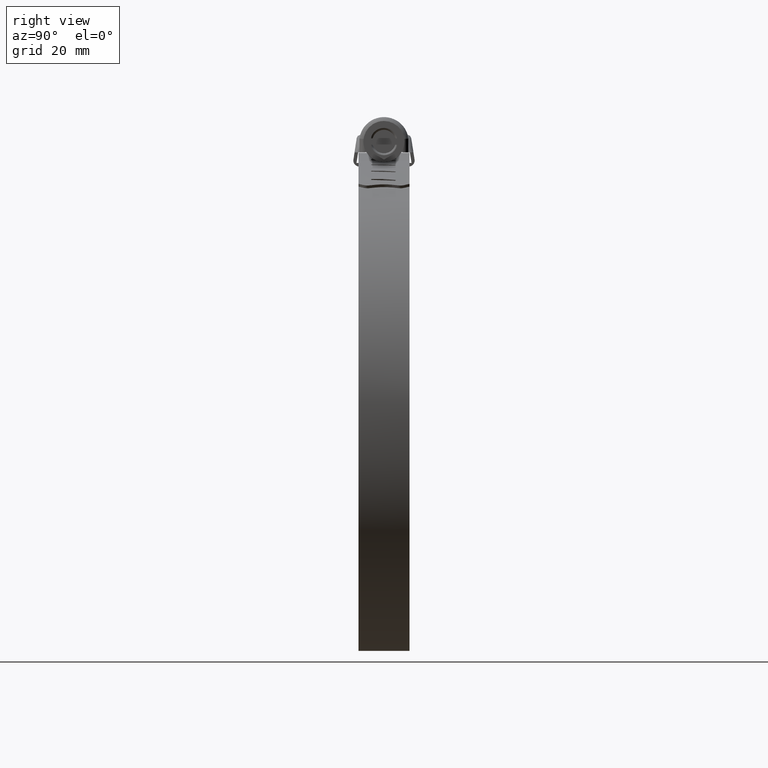
[diagram: clean part render]
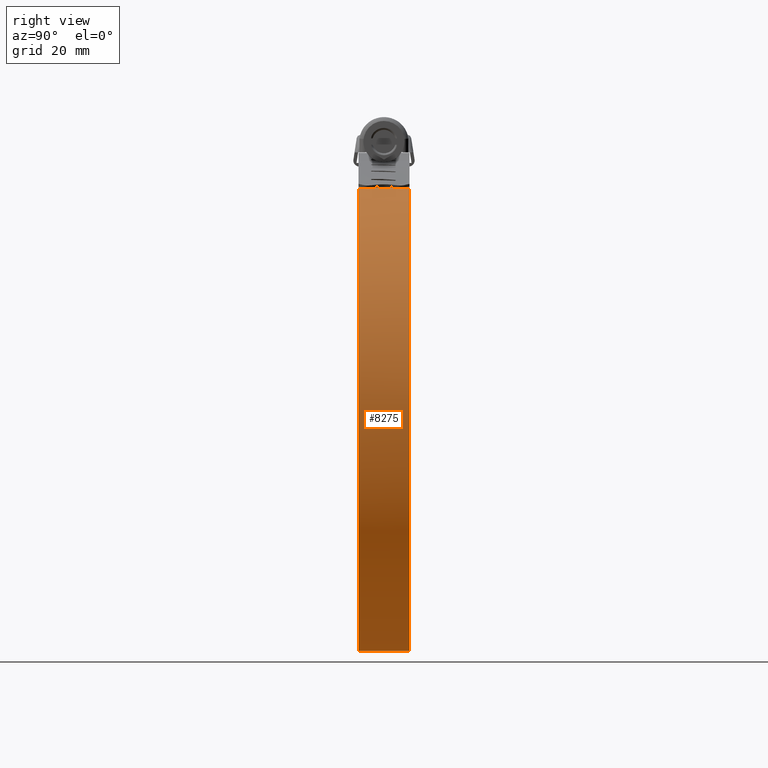
[diagram: same view with one face highlighted and labeled with its STEP entity id]
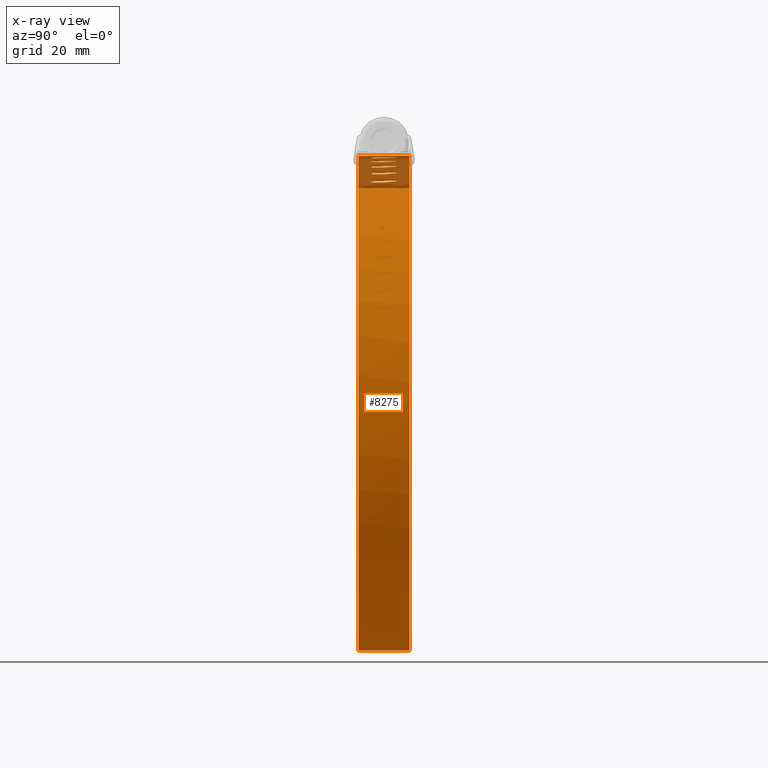
[diagram: x-ray of the same camera — body ghosted, the highlighted face saturated]
A machine part, right view. The second image highlights one B-rep face of the part: STEP entity #8275.
The next image is the same camera in x-ray: the body ghosted, the highlighted face saturated — about 6% of this face is hidden behind the body in this view.
In plain terms, the highlighted face is a freeform B-spline surface patch.
Its self-contained STEP definition (entity closure, byte-faithful):
#3616=CARTESIAN_POINT('',(-10.198496929265341,-0.236671000000022,11.577487468108041));
#3617=VERTEX_POINT('',#3616);
#3618=CARTESIAN_POINT('',(-10.198496929265319,-2.930488000000000,11.577487468108041));
#3619=VERTEX_POINT('',#3618);
#3620=CARTESIAN_POINT('',(-10.198496929265341,-0.236671000000022,11.577487468108041));
#3621=CARTESIAN_POINT('',(-10.198496929265319,-2.930488000000000,11.577487468108041));
#3622=QUASI_UNIFORM_CURVE('',1,(#3620,#3621),.UNSPECIFIED.,.F.,.U.);
#3623=EDGE_CURVE('',#3617,#3619,#3622,.T.);
#3661=CARTESIAN_POINT('',(-10.166740632344480,0.072343999999987,11.582663282726040));
#3662=VERTEX_POINT('',#3661);
#3663=CARTESIAN_POINT('',(-10.166740632344480,0.072343999999987,11.582663282726040));
#3664=CARTESIAN_POINT('',(-10.198496929265341,-0.236671000000022,11.577487468108041));
#3665=QUASI_UNIFORM_CURVE('',1,(#3663,#3664),.UNSPECIFIED.,.F.,.U.);
#3666=EDGE_CURVE('',#3662,#3617,#3665,.T.);
#3689=CARTESIAN_POINT('',(-9.605883924908161,2.769512000000000,11.671348147132219));
#3690=VERTEX_POINT('',#3689);
#3691=CARTESIAN_POINT('',(-9.605883924908161,2.769512000000000,11.671348147132219));
#3692=CARTESIAN_POINT('',(-10.166740632344480,0.072343999999987,11.582663282726040));
#3693=QUASI_UNIFORM_CURVE('',1,(#3691,#3692),.UNSPECIFIED.,.F.,.U.);
#3694=EDGE_CURVE('',#3690,#3662,#3693,.T.);
#3730=CARTESIAN_POINT('',(-9.018889818816041,2.707046000000000,11.758654773656261));
#3731=VERTEX_POINT('',#3730);
#3732=CARTESIAN_POINT('',(-9.278174315130412,3.067863327416463,11.720783579288129));
#3733=VERTEX_POINT('',#3732);
#3734=CARTESIAN_POINT('',(-9.018889818816041,2.707046000000000,11.758654773656261));
#3735=CARTESIAN_POINT('',(-9.007981060347490,2.758262541283379,11.760396071843919));
#3736=CARTESIAN_POINT('',(-9.013286237332823,2.855604207743463,11.759821662407420));
#3737=CARTESIAN_POINT('',(-9.097929711240901,3.004043545704644,11.747526905853920));
#3738=CARTESIAN_POINT('',(-9.205835081590426,3.060703536098044,11.731557848228860));
#3739=CARTESIAN_POINT('',(-9.278174315130412,3.067863327416463,11.720783579288129));
#3740=B_SPLINE_CURVE_WITH_KNOTS('',3,(#3734,#3735,#3736,#3737,#3738,#3739),.UNSPECIFIED.,.F.,.U.,(4,1,1,4),(0.000002011905788,0.157181247843555,0.282871850860450,0.502937843720848),.UNSPECIFIED.);
#3741=EDGE_CURVE('',#3731,#3733,#3740,.T.);
#3743=CARTESIAN_POINT('',(-9.278174315130412,3.067863327416463,11.720783579288129));
#3744=CARTESIAN_POINT('',(-9.350430387400106,3.076089283353123,11.710051451980160));
#3745=CARTESIAN_POINT('',(-9.467578894739711,3.043375594361095,11.692547084565639));
#3746=CARTESIAN_POINT('',(-9.580886109559726,2.916013370888204,11.675399659041620));
#3747=CARTESIAN_POINT('',(-9.606016136483058,2.821896246542748,11.671447244661540));
#3748=CARTESIAN_POINT('',(-9.605883924908161,2.769512000000000,11.671348147132219));
#3749=B_SPLINE_CURVE_WITH_KNOTS('',3,(#3743,#3744,#3745,#3746,#3747,#3748),.UNSPECIFIED.,.F.,.U.,(4,1,1,4),(0.000002007921833,0.220067662926244,0.345758070353992,0.502937063046766),.UNSPECIFIED.);
#3750=EDGE_CURVE('',#3733,#3690,#3749,.T.);
#3788=CARTESIAN_POINT('',(-9.605883924908161,-2.930488000000000,11.671348147132219));
#3789=VERTEX_POINT('',#3788);
#3790=CARTESIAN_POINT('',(-9.605883924908161,-2.930488000000000,11.671348147132219));
#3791=CARTESIAN_POINT('',(-9.018889818816041,2.707046000000000,11.758654773656261));
#3792=QUASI_UNIFORM_CURVE('',1,(#3790,#3791),.UNSPECIFIED.,.F.,.U.);
#3793=EDGE_CURVE('',#3789,#3731,#3792,.T.);
#3829=CARTESIAN_POINT('',(-9.902302891417852,-3.230487998482299,11.625119760989200));
#3830=VERTEX_POINT('',#3829);
#3831=CARTESIAN_POINT('',(-10.198496929265319,-2.930488000000000,11.577487468108041));
#3832=CARTESIAN_POINT('',(-10.198543970464589,-2.969742289558399,11.577574197171900));
#3833=CARTESIAN_POINT('',(-10.181203119983330,-3.058119563789645,11.580532754558741));
#3834=CARTESIAN_POINT('',(-10.086140355400200,-3.188197396809442,11.595901302636650));
#3835=CARTESIAN_POINT('',(-9.970265816459943,-3.230860680808896,11.614356385263770));
#3836=CARTESIAN_POINT('',(-9.902302891417852,-3.230487998482299,11.625119760989200));
#3837=B_SPLINE_CURVE_WITH_KNOTS('',3,(#3831,#3832,#3833,#3834,#3835,#3836),.UNSPECIFIED.,.F.,.U.,(4,1,1,4),(0.000001364281826,0.117858165906679,0.265159718270479,0.471428568168947),.UNSPECIFIED.);
#3838=EDGE_CURVE('',#3619,#3830,#3837,.T.);
#3840=CARTESIAN_POINT('',(-9.902302891417852,-3.230487998482299,11.625119760989200));
#3841=CARTESIAN_POINT('',(-9.834340792686943,-3.230861689498114,11.635884796500230));
#3842=CARTESIAN_POINT('',(-9.718432705747871,-3.188197481280723,11.654140473132570));
#3843=CARTESIAN_POINT('',(-9.623275769940157,-3.058120595219307,11.668899768111730));
#3844=CARTESIAN_POINT('',(-9.605866158524641,-2.969742031220865,11.671445140088990));
#3845=CARTESIAN_POINT('',(-9.605883924908161,-2.930488000000000,11.671348147132219));
#3846=B_SPLINE_CURVE_WITH_KNOTS('',3,(#3840,#3841,#3842,#3843,#3844,#3845),.UNSPECIFIED.,.F.,.U.,(4,1,1,4),(0.000001322088356,0.206270777686945,0.353572814558271,0.471430000201601),.UNSPECIFIED.);
#3847=EDGE_CURVE('',#3830,#3789,#3846,.T.);
#3879=CARTESIAN_POINT('',(-15.068636550846399,-0.236671000000022,10.584739089897379));
#3880=VERTEX_POINT('',#3879);
#3881=CARTESIAN_POINT('',(-15.068636550846399,-2.930488000000000,10.584739089897541));
#3882=VERTEX_POINT('',#3881);
#3883=CARTESIAN_POINT('',(-15.068636550846399,-0.236671000000022,10.584739089897379));
#3884=CARTESIAN_POINT('',(-15.068636550846399,-2.930488000000000,10.584739089897541));
#3885=QUASI_UNIFORM_CURVE('',1,(#3883,#3884),.UNSPECIFIED.,.F.,.U.);
#3886=EDGE_CURVE('',#3880,#3882,#3885,.T.);
#3924=CARTESIAN_POINT('',(-15.037384237725400,0.072343999999987,10.592390519546219));
#3925=VERTEX_POINT('',#3924);
#3926=CARTESIAN_POINT('',(-15.037384237725400,0.072343999999987,10.592390519546219));
#3927=CARTESIAN_POINT('',(-15.068636550846399,-0.236671000000022,10.584739089897379));
#3928=QUASI_UNIFORM_CURVE('',1,(#3926,#3927),.UNSPECIFIED.,.F.,.U.);
#3929=EDGE_CURVE('',#3925,#3880,#3928,.T.);
#3952=CARTESIAN_POINT('',(-14.485214598607721,2.769512000000000,10.724806308211040));
#3953=VERTEX_POINT('',#3952);
#3954=CARTESIAN_POINT('',(-14.485214598607721,2.769512000000000,10.724806308211040));
#3955=CARTESIAN_POINT('',(-15.037384237725400,0.072343999999987,10.592390519546219));
#3956=QUASI_UNIFORM_CURVE('',1,(#3954,#3955),.UNSPECIFIED.,.F.,.U.);
#3957=EDGE_CURVE('',#3953,#3925,#3956,.T.);
#3993=CARTESIAN_POINT('',(-13.906879998413419,2.707046000000000,10.857898824304179));
#3994=VERTEX_POINT('',#3993);
#3995=CARTESIAN_POINT('',(-14.162393867493201,3.067863327416466,10.799801147072280));
#3996=VERTEX_POINT('',#3995);
#3997=CARTESIAN_POINT('',(-13.906879998413419,2.707046000000000,10.857898824304179));
#3998=CARTESIAN_POINT('',(-13.896203856346199,2.758216446428476,10.860476161612770));
#3999=CARTESIAN_POINT('',(-13.902320673871660,2.877432875087012,10.859335459434011));
#4000=CARTESIAN_POINT('',(-14.003064739919161,3.019665758038010,10.836428625693280));
#4001=CARTESIAN_POINT('',(-14.111657423202850,3.062475531587330,10.811487255593590));
#4002=CARTESIAN_POINT('',(-14.162393867493201,3.067863327416466,10.799801147072280));
#4003=B_SPLINE_CURVE_WITH_KNOTS('',3,(#3997,#3998,#3999,#4000,#4001,#4002),.UNSPECIFIED.,.F.,.U.,(4,1,1,4),(0.000002011905869,0.157181247843593,0.345758607782717,0.502937843720840),.UNSPECIFIED.);
#4004=EDGE_CURVE('',#3994,#3996,#4003,.T.);
#4006=CARTESIAN_POINT('',(-14.162393867493201,3.067863327416466,10.799801147072280));
#4007=CARTESIAN_POINT('',(-14.233565184617349,3.076117379431776,10.783437621158530));
#4008=CARTESIAN_POINT('',(-14.359599203955320,3.040421426348886,10.754344423444101));
#4009=CARTESIAN_POINT('',(-14.465793306329459,2.905691973109576,10.729590165228061));
#4010=CARTESIAN_POINT('',(-14.485265549014070,2.811374613740097,10.724890915382760));
#4011=CARTESIAN_POINT('',(-14.485214598607721,2.769512000000000,10.724806308211040));
#4012=B_SPLINE_CURVE_WITH_KNOTS('',3,(#4006,#4007,#4008,#4009,#4010,#4011),.UNSPECIFIED.,.F.,.U.,(4,1,1,4),(0.000002007921701,0.220067662926188,0.377203299401400,0.502937063046785),.UNSPECIFIED.);
#4013=EDGE_CURVE('',#3996,#3953,#4012,.T.);
#4051=CARTESIAN_POINT('',(-14.485214598607721,-2.930488000000000,10.724806308211040));
#4052=VERTEX_POINT('',#4051);
#4053=CARTESIAN_POINT('',(-14.485214598607721,-2.930488000000000,10.724806308211040));
#4054=CARTESIAN_POINT('',(-13.906879998413419,2.707046000000000,10.857898824304179));
#4055=QUASI_UNIFORM_CURVE('',1,(#4053,#4054),.UNSPECIFIED.,.F.,.U.);
#4056=EDGE_CURVE('',#4052,#3994,#4055,.T.);
#4092=CARTESIAN_POINT('',(-14.777092766994629,-3.230487998482298,10.655463664685559));
#4093=VERTEX_POINT('',#4092);
#4094=CARTESIAN_POINT('',(-15.068636550846399,-2.930488000000000,10.584739089897541));
#4095=CARTESIAN_POINT('',(-15.069035513500889,-2.999300493412932,10.584811004592620));
#4096=CARTESIAN_POINT('',(-15.027625172062050,-3.116627124162540,10.595038674882980));
#4097=CARTESIAN_POINT('',(-14.901184802287601,-3.212932769758151,10.625629020415669));
#4098=CARTESIAN_POINT('',(-14.815263530283559,-3.230518192161006,10.646299748769140));
#4099=CARTESIAN_POINT('',(-14.777092766994629,-3.230487998482298,10.655463664685559));
#4100=B_SPLINE_CURVE_WITH_KNOTS('',3,(#4094,#4095,#4096,#4097,#4098,#4099),.UNSPECIFIED.,.F.,.U.,(4,1,1,4),(0.000001364281752,0.206270161442794,0.353571732846862,0.471428568168990),.UNSPECIFIED.);
#4101=EDGE_CURVE('',#3882,#4093,#4100,.T.);
#4103=CARTESIAN_POINT('',(-14.777092766994629,-3.230487998482298,10.655463664685559));
#4104=CARTESIAN_POINT('',(-14.700465552654940,-3.231180130625475,10.673861917922309));
#4105=CARTESIAN_POINT('',(-14.586985381057580,-3.181555190171259,10.700985159875049));
#4106=CARTESIAN_POINT('',(-14.500471038828900,-3.048280797575024,10.721430623924880));
#4107=CARTESIAN_POINT('',(-14.485205709208300,-2.969751552836060,10.724904128277361));
#4108=CARTESIAN_POINT('',(-14.485214598607721,-2.930488000000000,10.724806308211040));
#4109=B_SPLINE_CURVE_WITH_KNOTS('',3,(#4103,#4104,#4105,#4106,#4107,#4108),.UNSPECIFIED.,.F.,.U.,(4,1,1,4),(0.000001322088292,0.235715650465181,0.353572814558199,0.471430000201533),.UNSPECIFIED.);
#4110=EDGE_CURVE('',#4093,#4052,#4109,.T.);
#4142=CARTESIAN_POINT('',(-19.845873017261351,-0.236671000000022,9.212944272846141));
#4143=VERTEX_POINT('',#4142);
#4144=CARTESIAN_POINT('',(-19.845873017261351,-2.930488000000000,9.212944272846141));
#4145=VERTEX_POINT('',#4144);
#4146=CARTESIAN_POINT('',(-19.845873017261351,-0.236671000000022,9.212944272846141));
#4147=CARTESIAN_POINT('',(-19.845873017261351,-2.930488000000000,9.212944272846141));
#4148=QUASI_UNIFORM_CURVE('',1,(#4146,#4147),.UNSPECIFIED.,.F.,.U.);
#4149=EDGE_CURVE('',#4143,#4145,#4148,.T.);
#4187=CARTESIAN_POINT('',(-19.815317368843051,0.072343999999987,9.223024143917749));
#4188=VERTEX_POINT('',#4187);
#4189=CARTESIAN_POINT('',(-19.815317368843051,0.072343999999987,9.223024143917749));
#4190=CARTESIAN_POINT('',(-19.845873017261351,-0.236671000000022,9.212944272846141));
#4191=QUASI_UNIFORM_CURVE('',1,(#4189,#4190),.UNSPECIFIED.,.F.,.U.);
#4192=EDGE_CURVE('',#4188,#4143,#4191,.T.);
#4215=CARTESIAN_POINT('',(-19.275239107484150,2.769512000000000,9.398354469470791));
#4216=VERTEX_POINT('',#4215);
#4217=CARTESIAN_POINT('',(-19.275239107484150,2.769512000000000,9.398354469470791));
#4218=CARTESIAN_POINT('',(-19.815317368843051,0.072343999999987,9.223024143917749));
#4219=QUASI_UNIFORM_CURVE('',1,(#4217,#4218),.UNSPECIFIED.,.F.,.U.);
#4220=EDGE_CURVE('',#4216,#4188,#4219,.T.);
#4256=CARTESIAN_POINT('',(-18.709129638313701,2.707046000000000,9.576412315513862));
#4257=VERTEX_POINT('',#4256);
#4258=CARTESIAN_POINT('',(-18.959297552189341,3.067863327416460,9.498446346917870));
#4259=VERTEX_POINT('',#4258);
#4260=CARTESIAN_POINT('',(-18.709129638313701,2.707046000000000,9.576412315513862));
#4261=CARTESIAN_POINT('',(-18.694153210062151,2.778849765594555,9.581295625415663));
#4262=CARTESIAN_POINT('',(-18.711565306438128,2.888974334361202,9.576065509345362));
#4263=CARTESIAN_POINT('',(-18.813636483523389,3.020891779486671,9.544219207763607));
#4264=CARTESIAN_POINT('',(-18.899549775628639,3.061558299694526,9.517251574530013));
#4265=CARTESIAN_POINT('',(-18.959297552189341,3.067863327416460,9.498446346917870));
#4266=B_SPLINE_CURVE_WITH_KNOTS('',3,(#4260,#4261,#4262,#4263,#4264,#4265),.UNSPECIFIED.,.F.,.U.,(4,1,1,4),(0.000002011905582,0.220068004764964,0.314308541367801,0.502937843720994),.UNSPECIFIED.);
#4267=EDGE_CURVE('',#4257,#4259,#4266,.T.);
#4269=CARTESIAN_POINT('',(-18.959297552189341,3.067863327416460,9.498446346917870));
#4270=CARTESIAN_POINT('',(-18.999038350222879,3.072290472024517,9.485954895713205));
#4271=CARTESIAN_POINT('',(-19.090453744202410,3.062215463380984,9.457173298051526));
#4272=CARTESIAN_POINT('',(-19.229141556288930,2.967917089027174,9.413322503605183));
#4273=CARTESIAN_POINT('',(-19.275818147170671,2.842995734738235,9.398345067142520));
#4274=CARTESIAN_POINT('',(-19.275239107484150,2.769512000000000,9.398354469470791));
#4275=B_SPLINE_CURVE_WITH_KNOTS('',3,(#4269,#4270,#4271,#4272,#4273,#4274),.UNSPECIFIED.,.F.,.U.,(4,1,1,4),(0.000002007921814,0.125735771838846,0.282871411707282,0.502937063046525),.UNSPECIFIED.);
#4276=EDGE_CURVE('',#4259,#4216,#4275,.T.);
#4314=CARTESIAN_POINT('',(-19.275239107484150,-2.930488000000000,9.398354469471018));
#4315=VERTEX_POINT('',#4314);
#4316=CARTESIAN_POINT('',(-19.275239107484150,-2.930488000000000,9.398354469471018));
#4317=CARTESIAN_POINT('',(-18.709129638313701,2.707046000000000,9.576412315513862));
#4318=QUASI_UNIFORM_CURVE('',1,(#4316,#4317),.UNSPECIFIED.,.F.,.U.);
#4319=EDGE_CURVE('',#4315,#4257,#4318,.T.);
#4355=CARTESIAN_POINT('',(-19.560776951781229,-3.230487998482299,9.306325089019378));
#4356=VERTEX_POINT('',#4355);
#4357=CARTESIAN_POINT('',(-19.845873017261351,-2.930488000000000,9.212944272846141));
#4358=CARTESIAN_POINT('',(-19.846279917346880,-2.999297963025647,9.212983511976638));
#4359=CARTESIAN_POINT('',(-19.805789949220419,-3.116632651989712,9.226431854793935));
#4360=CARTESIAN_POINT('',(-19.682149333614120,-3.212928715728596,9.266845060292630));
#4361=CARTESIAN_POINT('',(-19.598110024998849,-3.230519468044794,9.294194916604882));
#4362=CARTESIAN_POINT('',(-19.560776951781229,-3.230487998482299,9.306325089019378));
#4363=B_SPLINE_CURVE_WITH_KNOTS('',3,(#4357,#4358,#4359,#4360,#4361,#4362),.UNSPECIFIED.,.F.,.U.,(4,1,1,4),(0.000001364281890,0.206270161442788,0.353571732846786,0.471428568168878),.UNSPECIFIED.);
#4364=EDGE_CURVE('',#4145,#4356,#4363,.T.);
#4366=CARTESIAN_POINT('',(-19.560776951781229,-3.230487998482299,9.306325089019378));
#4367=CARTESIAN_POINT('',(-19.523443777525308,-3.230520421644870,9.318455453428827));
#4368=CARTESIAN_POINT('',(-19.439378396747038,-3.212929426416805,9.345726121124393));
#4369=CARTESIAN_POINT('',(-19.315596702062312,-3.116632560825923,9.385705295528695));
#4370=CARTESIAN_POINT('',(-19.274934282939849,-2.999298194432976,9.398624962528643));
#4371=CARTESIAN_POINT('',(-19.275239107484150,-2.930488000000000,9.398354469471018));
#4372=B_SPLINE_CURVE_WITH_KNOTS('',3,(#4366,#4367,#4368,#4369,#4370,#4371),.UNSPECIFIED.,.F.,.U.,(4,1,1,4),(0.000001322088137,0.117858497639915,0.265160528811273,0.471430000201677),.UNSPECIFIED.);
#4373=EDGE_CURVE('',#4356,#4315,#4372,.T.);
#4405=CARTESIAN_POINT('',(-24.500753077102448,-0.236671000000022,7.470560588169470));
#4406=VERTEX_POINT('',#4405);
#4407=CARTESIAN_POINT('',(-24.500753077102502,-2.930488000000000,7.470560588169530));
#4408=VERTEX_POINT('',#4407);
#4409=CARTESIAN_POINT('',(-24.500753077102448,-0.236671000000022,7.470560588169470));
#4410=CARTESIAN_POINT('',(-24.500753077102502,-2.930488000000000,7.470560588169530));
#4411=QUASI_UNIFORM_CURVE('',1,(#4409,#4410),.UNSPECIFIED.,.F.,.U.);
#4412=EDGE_CURVE('',#4406,#4408,#4411,.T.);
#4450=CARTESIAN_POINT('',(-24.471082479120149,0.072343999999987,7.483006754906890));
#4451=VERTEX_POINT('',#4450);
#4452=CARTESIAN_POINT('',(-24.471082479120149,0.072343999999987,7.483006754906890));
#4453=CARTESIAN_POINT('',(-24.500753077102448,-0.236671000000022,7.470560588169470));
#4454=QUASI_UNIFORM_CURVE('',1,(#4452,#4453),.UNSPECIFIED.,.F.,.U.);
#4455=EDGE_CURVE('',#4451,#4406,#4454,.T.);
#4478=CARTESIAN_POINT('',(-23.946425357595650,2.769512000000000,7.700170647588660));
#4479=VERTEX_POINT('',#4478);
#4480=CARTESIAN_POINT('',(-23.946425357595650,2.769512000000000,7.700170647588660));
#4481=CARTESIAN_POINT('',(-24.471082479120149,0.072343999999987,7.483006754906890));
#4482=QUASI_UNIFORM_CURVE('',1,(#4480,#4481),.UNSPECIFIED.,.F.,.U.);
#4483=EDGE_CURVE('',#4479,#4451,#4482,.T.);
#4519=CARTESIAN_POINT('',(-23.396031272576849,2.707046000000000,7.922096037749881));
#4520=VERTEX_POINT('',#4519);
#4521=CARTESIAN_POINT('',(-23.639310862869639,3.067863327416465,7.824742463912425));
#4522=VERTEX_POINT('',#4521);
#4523=CARTESIAN_POINT('',(-23.396031272576849,2.707046000000000,7.922096037749881));
#4524=CARTESIAN_POINT('',(-23.381415756760870,2.778870931439985,7.928166992193418));
#4525=CARTESIAN_POINT('',(-23.398487092083169,2.888961363660588,7.921537018746621));
#4526=CARTESIAN_POINT('',(-23.497679424319120,3.020898418856270,7.881806989987026));
#4527=CARTESIAN_POINT('',(-23.581223198476231,3.061555804435348,7.848177274644073));
#4528=CARTESIAN_POINT('',(-23.639310862869639,3.067863327416465,7.824742463912425));
#4529=B_SPLINE_CURVE_WITH_KNOTS('',3,(#4523,#4524,#4525,#4526,#4527,#4528),.UNSPECIFIED.,.F.,.U.,(4,1,1,4),(0.000002011905671,0.220068004764981,0.314308541367802,0.502937843720942),.UNSPECIFIED.);
#4530=EDGE_CURVE('',#4520,#4522,#4529,.T.);
#4532=CARTESIAN_POINT('',(-23.639310862869639,3.067863327416465,7.824742463912425));
#4533=CARTESIAN_POINT('',(-23.707094181415549,3.076078068620704,7.797427277836281));
#4534=CARTESIAN_POINT('',(-23.806848984709951,3.046364570375723,7.757127204736312));
#4535=CARTESIAN_POINT('',(-23.918050170327579,2.926273969030988,7.711992599472716));
#4536=CARTESIAN_POINT('',(-23.946743875065071,2.832470616841222,7.700194436652153));
#4537=CARTESIAN_POINT('',(-23.946425357595650,2.769512000000000,7.700170647588660));
#4538=B_SPLINE_CURVE_WITH_KNOTS('',3,(#4532,#4533,#4534,#4535,#4536,#4537),.UNSPECIFIED.,.F.,.U.,(4,1,1,4),(0.000002007921619,0.220067662926073,0.314308052936837,0.502937063046591),.UNSPECIFIED.);
#4539=EDGE_CURVE('',#4522,#4479,#4538,.T.);
#4577=CARTESIAN_POINT('',(-23.946425357595501,-2.930488000000000,7.700170647588210));
#4578=VERTEX_POINT('',#4577);
#4579=CARTESIAN_POINT('',(-23.946425357595501,-2.930488000000000,7.700170647588210));
#4580=CARTESIAN_POINT('',(-23.396031272576849,2.707046000000000,7.922096037749881));
#4581=QUASI_UNIFORM_CURVE('',1,(#4579,#4580),.UNSPECIFIED.,.F.,.U.);
#4582=EDGE_CURVE('',#4578,#4520,#4581,.T.);
#4618=CARTESIAN_POINT('',(-24.223862442041192,-3.230487998482299,7.586021921943971));
#4619=VERTEX_POINT('',#4618);
#4620=CARTESIAN_POINT('',(-24.500753077102502,-2.930488000000000,7.470560588169530));
#4621=CARTESIAN_POINT('',(-24.501161300773159,-2.999296623412729,7.470567985305260));
#4622=CARTESIAN_POINT('',(-24.461853294513769,-3.116633525509628,7.487150854907863));
#4623=CARTESIAN_POINT('',(-24.341760649076029,-3.212929528481767,7.537141849410132));
#4624=CARTESIAN_POINT('',(-24.260129460947439,-3.230519335370100,7.570999711206752));
#4625=CARTESIAN_POINT('',(-24.223862442041192,-3.230487998482299,7.586021921943971));
#4626=B_SPLINE_CURVE_WITH_KNOTS('',3,(#4620,#4621,#4622,#4623,#4624,#4625),.UNSPECIFIED.,.F.,.U.,(4,1,1,4),(0.000001364281649,0.206270161442791,0.353571732846914,0.471428568169056),.UNSPECIFIED.);
#4627=EDGE_CURVE('',#4408,#4619,#4626,.T.);
#4629=CARTESIAN_POINT('',(-24.223862442041192,-3.230487998482299,7.586021921943971));
#4630=CARTESIAN_POINT('',(-24.160283322560620,-3.230863392428677,7.612358218345208));
#4631=CARTESIAN_POINT('',(-24.051864534543672,-3.188188896122954,7.657157293852852));
#4632=CARTESIAN_POINT('',(-23.962749253943230,-3.058125199312175,7.693736448103618));
#4633=CARTESIAN_POINT('',(-23.946434449056230,-2.969746787743371,7.700267577604245));
#4634=CARTESIAN_POINT('',(-23.946425357595501,-2.930488000000000,7.700170647588210));
#4635=B_SPLINE_CURVE_WITH_KNOTS('',3,(#4629,#4630,#4631,#4632,#4633,#4634),.UNSPECIFIED.,.F.,.U.,(4,1,1,4),(0.000001322088182,0.206270777686828,0.353572814558146,0.471430000201467),.UNSPECIFIED.);
#4636=EDGE_CURVE('',#4619,#4578,#4635,.T.);
#4668=CARTESIAN_POINT('',(-29.004577846896101,-0.236671000000022,5.368330410684770));
#4669=VERTEX_POINT('',#4668);
#4670=CARTESIAN_POINT('',(-29.004577846896002,-2.930488000000000,5.368330410684631));
#4671=VERTEX_POINT('',#4670);
#4672=CARTESIAN_POINT('',(-29.004577846896101,-0.236671000000022,5.368330410684770));
#4673=CARTESIAN_POINT('',(-29.004577846896002,-2.930488000000000,5.368330410684631));
#4674=QUASI_UNIFORM_CURVE('',1,(#4672,#4673),.UNSPECIFIED.,.F.,.U.);
#4675=EDGE_CURVE('',#4669,#4671,#4674,.T.);
#4713=CARTESIAN_POINT('',(-28.975975228452800,0.072343999999987,5.383066138331200));
#4714=VERTEX_POINT('',#4713);
#4715=CARTESIAN_POINT('',(-28.975975228452800,0.072343999999987,5.383066138331200));
#4716=CARTESIAN_POINT('',(-29.004577846896101,-0.236671000000022,5.368330410684770));
#4717=QUASI_UNIFORM_CURVE('',1,(#4715,#4716),.UNSPECIFIED.,.F.,.U.);
#4718=EDGE_CURVE('',#4714,#4669,#4717,.T.);
#4741=CARTESIAN_POINT('',(-28.469973932382949,2.769512000000000,5.640724710528461));
#4742=VERTEX_POINT('',#4741);
#4743=CARTESIAN_POINT('',(-28.469973932382949,2.769512000000000,5.640724710528461));
#4744=CARTESIAN_POINT('',(-28.975975228452800,0.072343999999987,5.383066138331200));
#4745=QUASI_UNIFORM_CURVE('',1,(#4743,#4744),.UNSPECIFIED.,.F.,.U.);
#4746=EDGE_CURVE('',#4742,#4714,#4745,.T.);
#4782=CARTESIAN_POINT('',(-27.938688594074652,2.707046000000000,5.905149400980310));
#4783=VERTEX_POINT('',#4782);
#4784=CARTESIAN_POINT('',(-28.173579961212010,3.067863327416464,5.789008439057496));
#4785=VERTEX_POINT('',#4784);
#4786=CARTESIAN_POINT('',(-27.938688594074652,2.707046000000000,5.905149400980310));
#4787=CARTESIAN_POINT('',(-27.926776191474211,2.768512706751818,5.911235851898870));
#4788=CARTESIAN_POINT('',(-27.938628846146880,2.888754234951404,5.905626615782753));
#4789=CARTESIAN_POINT('',(-28.036416214677399,3.023498515878222,5.857238011649671));
#4790=CARTESIAN_POINT('',(-28.126899491049699,3.062499062968679,5.812252746941883));
#4791=CARTESIAN_POINT('',(-28.173579961212010,3.067863327416464,5.789008439057496));
#4792=B_SPLINE_CURVE_WITH_KNOTS('',3,(#4786,#4787,#4788,#4789,#4790,#4791),.UNSPECIFIED.,.F.,.U.,(4,1,1,4),(0.000002011905776,0.188631314258209,0.345758607782809,0.502937843721013),.UNSPECIFIED.);
#4793=EDGE_CURVE('',#4783,#4785,#4792,.T.);
#4795=CARTESIAN_POINT('',(-28.173579961212010,3.067863327416464,5.789008439057496));
#4796=CARTESIAN_POINT('',(-28.229607462097309,3.074735588782273,5.761136785226714));
#4797=CARTESIAN_POINT('',(-28.316020208684190,3.053720366066804,5.718070375643520));
#4798=CARTESIAN_POINT('',(-28.434066354417379,2.946922627941362,5.659042885905175));
#4799=CARTESIAN_POINT('',(-28.470516724523090,2.843057730861991,5.640638759752534));
#4800=CARTESIAN_POINT('',(-28.469973932382949,2.769512000000000,5.640724710528461));
#4801=B_SPLINE_CURVE_WITH_KNOTS('',3,(#4795,#4796,#4797,#4798,#4799,#4800),.UNSPECIFIED.,.F.,.U.,(4,1,1,4),(0.000002007921660,0.188631020195449,0.282871411707213,0.502937063046485),.UNSPECIFIED.);
#4802=EDGE_CURVE('',#4785,#4742,#4801,.T.);
#4840=CARTESIAN_POINT('',(-28.469973932382949,-2.930488000000000,5.640724710528461));
#4841=VERTEX_POINT('',#4840);
#4842=CARTESIAN_POINT('',(-28.469973932382949,-2.930488000000000,5.640724710528461));
#4843=CARTESIAN_POINT('',(-27.938688594074652,2.707046000000000,5.905149400980310));
#4844=QUASI_UNIFORM_CURVE('',1,(#4842,#4843),.UNSPECIFIED.,.F.,.U.);
#4845=EDGE_CURVE('',#4841,#4783,#4844,.T.);
#4881=CARTESIAN_POINT('',(-28.737599765095020,-3.230487998482299,5.505160404542746));
#4882=VERTEX_POINT('',#4881);
#4883=CARTESIAN_POINT('',(-29.004577846896002,-2.930488000000000,5.368330410684631));
#4884=CARTESIAN_POINT('',(-29.004988338346891,-2.999306480435239,5.368304281399864));
#4885=CARTESIAN_POINT('',(-28.967089853714452,-3.116614204973531,5.387926510219749));
#4886=CARTESIAN_POINT('',(-28.851306774300941,-3.212943947935633,5.447177130138678));
#4887=CARTESIAN_POINT('',(-28.772579492448141,-3.230516383041504,5.487337418713489));
#4888=CARTESIAN_POINT('',(-28.737599765095020,-3.230487998482299,5.505160404542746));
#4889=B_SPLINE_CURVE_WITH_KNOTS('',3,(#4883,#4884,#4885,#4886,#4887,#4888),.UNSPECIFIED.,.F.,.U.,(4,1,1,4),(0.000001364282066,0.206270161442839,0.353571732846745,0.471428568168809),.UNSPECIFIED.);
#4890=EDGE_CURVE('',#4671,#4882,#4889,.T.);
#4892=CARTESIAN_POINT('',(-28.737599765095020,-3.230487998482299,5.505160404542746));
#4893=CARTESIAN_POINT('',(-28.667384753708351,-3.231180130625482,5.540938580510825));
#4894=CARTESIAN_POINT('',(-28.563371843372181,-3.181555190171278,5.593803825078360));
#4895=CARTESIAN_POINT('',(-28.484020798100019,-3.048280797575066,5.633880751429282));
#4896=CARTESIAN_POINT('',(-28.469988124239361,-2.969751552836077,5.640821903007682));
#4897=CARTESIAN_POINT('',(-28.469973932382949,-2.930488000000000,5.640724710528461));
#4898=B_SPLINE_CURVE_WITH_KNOTS('',3,(#4892,#4893,#4894,#4895,#4896,#4897),.UNSPECIFIED.,.F.,.U.,(4,1,1,4),(0.000001322088358,0.235715650465374,0.353572814558412,0.471430000201746),.UNSPECIFIED.);
#4899=EDGE_CURVE('',#4882,#4841,#4898,.T.);
#4931=CARTESIAN_POINT('',(-33.329579749262699,-0.236671000000022,2.919214688498750));
#4932=VERTEX_POINT('',#4931);
#4933=CARTESIAN_POINT('',(-33.329579749262848,-2.930488000000000,2.919214688498985));
#4934=VERTEX_POINT('',#4933);
#4935=CARTESIAN_POINT('',(-33.329579749262699,-0.236671000000022,2.919214688498750));
#4936=CARTESIAN_POINT('',(-33.329579749262848,-2.930488000000000,2.919214688498985));
#4937=QUASI_UNIFORM_CURVE('',1,(#4935,#4936),.UNSPECIFIED.,.F.,.U.);
#4938=EDGE_CURVE('',#4932,#4934,#4937,.T.);
#4976=CARTESIAN_POINT('',(-33.302221455012393,0.072343999999987,2.936149126393115));
#4977=VERTEX_POINT('',#4976);
#4978=CARTESIAN_POINT('',(-33.302221455012393,0.072343999999987,2.936149126393115));
#4979=CARTESIAN_POINT('',(-33.329579749262699,-0.236671000000022,2.919214688498750));
#4980=QUASI_UNIFORM_CURVE('',1,(#4978,#4979),.UNSPECIFIED.,.F.,.U.);
#4981=EDGE_CURVE('',#4977,#4932,#4980,.T.);
#5004=CARTESIAN_POINT('',(-32.817995650650040,2.769512000000000,3.232713827328040));
#5005=VERTEX_POINT('',#5004);
#5006=CARTESIAN_POINT('',(-32.817995650650040,2.769512000000000,3.232713827328040));
#5007=CARTESIAN_POINT('',(-33.302221455012393,0.072343999999987,2.936149126393115));
#5008=QUASI_UNIFORM_CURVE('',1,(#5006,#5007),.UNSPECIFIED.,.F.,.U.);
#5009=EDGE_CURVE('',#5005,#4977,#5008,.T.);
#5045=CARTESIAN_POINT('',(-32.309094609833352,2.707046000000000,3.538007551923855));
#5046=VERTEX_POINT('',#5045);
#5047=CARTESIAN_POINT('',(-32.534149570427473,3.067863327416467,3.403795249566664));
#5048=VERTEX_POINT('',#5047);
#5049=CARTESIAN_POINT('',(-32.309094609833352,2.707046000000000,3.538007551923855));
#5050=CARTESIAN_POINT('',(-32.299707022288587,2.758251290537590,3.543776207185398));
#5051=CARTESIAN_POINT('',(-32.304342326571650,2.855610885081382,3.541243120685519));
#5052=CARTESIAN_POINT('',(-32.377863793269213,3.004076488161186,3.497476990812774));
#5053=CARTESIAN_POINT('',(-32.471435463208117,3.060650765200355,3.441434971281965));
#5054=CARTESIAN_POINT('',(-32.534149570427473,3.067863327416467,3.403795249566664));
#5055=B_SPLINE_CURVE_WITH_KNOTS('',3,(#5049,#5050,#5051,#5052,#5053,#5054),.UNSPECIFIED.,.F.,.U.,(4,1,1,4),(0.000002011905560,0.157181247843480,0.282871850860501,0.502937843721039),.UNSPECIFIED.);
#5056=EDGE_CURVE('',#5046,#5048,#5055,.T.);
#5058=CARTESIAN_POINT('',(-32.534149570427473,3.067863327416467,3.403795249566664));
#5059=CARTESIAN_POINT('',(-32.578812228096893,3.073460528015393,3.377013313878122));
#5060=CARTESIAN_POINT('',(-32.661350303089101,3.058028276157084,3.327451996334568));
#5061=CARTESIAN_POINT('',(-32.780166570170643,2.957399882772407,3.255901783915543));
#5062=CARTESIAN_POINT('',(-32.818494081448783,2.843005214997462,3.232606983050228));
#5063=CARTESIAN_POINT('',(-32.817995650650040,2.769512000000000,3.232713827328040));
#5064=B_SPLINE_CURVE_WITH_KNOTS('',3,(#5058,#5059,#5060,#5061,#5062,#5063),.UNSPECIFIED.,.F.,.U.,(4,1,1,4),(0.000002007921618,0.157181001752145,0.282871411707085,0.502937063046438),.UNSPECIFIED.);
#5065=EDGE_CURVE('',#5048,#5005,#5064,.T.);
#5103=CARTESIAN_POINT('',(-32.817995650650147,-2.930488000000000,3.232713827328260));
#5104=VERTEX_POINT('',#5103);
#5105=CARTESIAN_POINT('',(-32.817995650650147,-2.930488000000000,3.232713827328260));
#5106=CARTESIAN_POINT('',(-32.309094609833352,2.707046000000000,3.538007551923855));
#5107=QUASI_UNIFORM_CURVE('',1,(#5105,#5106),.UNSPECIFIED.,.F.,.U.);
#5108=EDGE_CURVE('',#5104,#5046,#5107,.T.);
#5144=CARTESIAN_POINT('',(-33.074160229374812,-3.230487998482299,3.076569740027711));
#5145=VERTEX_POINT('',#5144);
#5146=CARTESIAN_POINT('',(-33.329579749262848,-2.930488000000000,2.919214688498985));
#5147=CARTESIAN_POINT('',(-33.329984566859707,-2.999297963025653,2.919157854510646));
#5148=CARTESIAN_POINT('',(-33.293752793057827,-3.116632651989704,2.941686813887119));
#5149=CARTESIAN_POINT('',(-33.182962652965067,-3.212928715728569,3.009846727798375));
#5150=CARTESIAN_POINT('',(-33.107630054294702,-3.230519468044797,3.056059492381466));
#5151=CARTESIAN_POINT('',(-33.074160229374812,-3.230487998482299,3.076569740027711));
#5152=B_SPLINE_CURVE_WITH_KNOTS('',3,(#5146,#5147,#5148,#5149,#5150,#5151),.UNSPECIFIED.,.F.,.U.,(4,1,1,4),(0.000001364281419,0.206270161442571,0.353571732846755,0.471428568168891),.UNSPECIFIED.);
#5153=EDGE_CURVE('',#4934,#5145,#5152,.T.);
#5155=CARTESIAN_POINT('',(-33.074160229374812,-3.230487998482299,3.076569740027711));
#5156=CARTESIAN_POINT('',(-33.015490148546959,-3.230862100782675,3.112523851483918));
#5157=CARTESIAN_POINT('',(-32.915393044203299,-3.188197307978546,3.173744860690482));
#5158=CARTESIAN_POINT('',(-32.833125259384737,-3.058120067808890,3.223797109755578));
#5159=CARTESIAN_POINT('',(-32.818016960878651,-2.969742321940744,3.232809865101743));
#5160=CARTESIAN_POINT('',(-32.817995650650147,-2.930488000000000,3.232713827328260));
#5161=B_SPLINE_CURVE_WITH_KNOTS('',3,(#5155,#5156,#5157,#5158,#5159,#5160),.UNSPECIFIED.,.F.,.U.,(4,1,1,4),(0.000001322088387,0.206270777686932,0.353572814558278,0.471430000201649),.UNSPECIFIED.);
#5162=EDGE_CURVE('',#5145,#5104,#5161,.T.);
#5194=CARTESIAN_POINT('',(-37.449093709265199,-0.236671000000022,0.138313034452282));
#5195=VERTEX_POINT('',#5194);
#5196=CARTESIAN_POINT('',(-37.449093709265298,-2.930488000000000,0.138313034452553));
#5197=VERTEX_POINT('',#5196);
#5198=CARTESIAN_POINT('',(-37.449093709265199,-0.236671000000022,0.138313034452282));
#5199=CARTESIAN_POINT('',(-37.449093709265298,-2.930488000000000,0.138313034452553));
#5200=QUASI_UNIFORM_CURVE('',1,(#5198,#5199),.UNSPECIFIED.,.F.,.U.);
#5201=EDGE_CURVE('',#5195,#5197,#5200,.T.);
#5239=CARTESIAN_POINT('',(-37.423148412189548,0.072343999999987,0.157341776153793));
#5240=VERTEX_POINT('',#5239);
#5241=CARTESIAN_POINT('',(-37.423148412189548,0.072343999999987,0.157341776153793));
#5242=CARTESIAN_POINT('',(-37.449093709265199,-0.236671000000022,0.138313034452282));
#5243=QUASI_UNIFORM_CURVE('',1,(#5241,#5242),.UNSPECIFIED.,.F.,.U.);
#5244=EDGE_CURVE('',#5240,#5195,#5243,.T.);
#5267=CARTESIAN_POINT('',(-36.963683512640102,2.769512000000000,0.490984185827714));
#5268=VERTEX_POINT('',#5267);
#5269=CARTESIAN_POINT('',(-36.963683512640102,2.769512000000000,0.490984185827714));
#5270=CARTESIAN_POINT('',(-37.423148412189548,0.072343999999987,0.157341776153793));
#5271=QUASI_UNIFORM_CURVE('',1,(#5269,#5270),.UNSPECIFIED.,.F.,.U.);
#5272=EDGE_CURVE('',#5268,#5240,#5271,.T.);
#5308=CARTESIAN_POINT('',(-36.480304313458362,2.707046000000000,0.835264707234655));
#5309=VERTEX_POINT('',#5308);
#5310=CARTESIAN_POINT('',(-36.694135328837653,3.067863327416466,0.683808527917707));
#5311=VERTEX_POINT('',#5310);
#5312=CARTESIAN_POINT('',(-36.480304313458362,2.707046000000000,0.835264707234655));
#5313=CARTESIAN_POINT('',(-36.471397518540840,2.758253199220035,0.841752660851405));
#5314=CARTESIAN_POINT('',(-36.475818967652138,2.855619272933094,0.838864305027182));
#5315=CARTESIAN_POINT('',(-36.545697345155837,3.004031579205604,0.789452112809931));
#5316=CARTESIAN_POINT('',(-36.634548205353383,3.060704745739716,0.726266773364157));
#5317=CARTESIAN_POINT('',(-36.694135328837653,3.067863327416466,0.683808527917707));
#5318=B_SPLINE_CURVE_WITH_KNOTS('',3,(#5312,#5313,#5314,#5315,#5316,#5317),.UNSPECIFIED.,.F.,.U.,(4,1,1,4),(0.000002011906003,0.157181247843533,0.282871850860252,0.502937843720330),.UNSPECIFIED.);
#5319=EDGE_CURVE('',#5309,#5311,#5318,.T.);
#5321=CARTESIAN_POINT('',(-36.694135328837653,3.067863327416466,0.683808527917707));
#5322=CARTESIAN_POINT('',(-36.728077964746042,3.072300633155489,0.659642938964070));
#5323=CARTESIAN_POINT('',(-36.797429031759378,3.063286624198206,0.610218401467117));
#5324=CARTESIAN_POINT('',(-36.880408504123928,3.004435378704045,0.550948944386653));
#5325=CARTESIAN_POINT('',(-36.945514249272073,2.905558307523487,0.504300984188740));
#5326=CARTESIAN_POINT('',(-36.963853175202871,2.821889267647896,0.491007545445219));
#5327=CARTESIAN_POINT('',(-36.963683512640102,2.769512000000000,0.490984185827714));
#5328=B_SPLINE_CURVE_WITH_KNOTS('',3,(#5321,#5322,#5323,#5324,#5325,#5326,#5327),.UNSPECIFIED.,.F.,.U.,(4,1,1,1,4),(0.000002007921293,0.125735771838812,0.251469538463277,0.345758070354512,0.502937063047622),.UNSPECIFIED.);
#5329=EDGE_CURVE('',#5311,#5268,#5328,.T.);
#5368=CARTESIAN_POINT('',(-36.963683512640252,-2.930488000000000,0.490984185828047));
#5369=VERTEX_POINT('',#5368);
#5370=CARTESIAN_POINT('',(-36.963683512640252,-2.930488000000000,0.490984185828047));
#5371=CARTESIAN_POINT('',(-36.480304313458362,2.707046000000000,0.835264707234655));
#5372=QUASI_UNIFORM_CURVE('',1,(#5370,#5371),.UNSPECIFIED.,.F.,.U.);
#5373=EDGE_CURVE('',#5369,#5309,#5372,.T.);
#5409=CARTESIAN_POINT('',(-37.206807497565840,-3.230487998482299,0.315222997433956));
#5410=VERTEX_POINT('',#5409);
#5411=CARTESIAN_POINT('',(-37.449093709265298,-2.930488000000000,0.138313034452553));
#5412=CARTESIAN_POINT('',(-37.449492819801172,-2.999297963025717,0.138224614041881));
#5413=CARTESIAN_POINT('',(-37.415140338246211,-3.116632651989629,0.163526836364478));
#5414=CARTESIAN_POINT('',(-37.310039492391567,-3.212928715728647,0.240169130215667));
#5415=CARTESIAN_POINT('',(-37.238564930701877,-3.230519468044868,0.292149963838858));
#5416=CARTESIAN_POINT('',(-37.206807497565840,-3.230487998482299,0.315222997433956));
#5417=B_SPLINE_CURVE_WITH_KNOTS('',3,(#5411,#5412,#5413,#5414,#5415,#5416),.UNSPECIFIED.,.F.,.U.,(4,1,1,4),(0.000001364281677,0.206270161442864,0.353571732847012,0.471428568169175),.UNSPECIFIED.);
#5418=EDGE_CURVE('',#5197,#5410,#5417,.T.);
#5420=CARTESIAN_POINT('',(-37.206807497565840,-3.230487998482299,0.315222997433956));
#5421=CARTESIAN_POINT('',(-37.151133276966668,-3.230864283468518,0.355673788551856));
#5422=CARTESIAN_POINT('',(-37.056168657939423,-3.188188616725727,0.424544622135696));
#5423=CARTESIAN_POINT('',(-36.978053201389351,-3.058124471974941,0.480917854174797));
#5424=CARTESIAN_POINT('',(-36.963715459405229,-2.969747138419410,0.491075968576044));
#5425=CARTESIAN_POINT('',(-36.963683512640252,-2.930488000000000,0.490984185828047));
#5426=B_SPLINE_CURVE_WITH_KNOTS('',3,(#5420,#5421,#5422,#5423,#5424,#5425),.UNSPECIFIED.,.F.,.U.,(4,1,1,4),(0.000001322088441,0.206270777686875,0.353572814558090,0.471430000201350),.UNSPECIFIED.);
#5427=EDGE_CURVE('',#5410,#5369,#5426,.T.);
#5459=CARTESIAN_POINT('',(-41.337721553462700,-0.236671000000022,-2.957229368013805));
#5460=VERTEX_POINT('',#5459);
#5461=CARTESIAN_POINT('',(-41.337721553462700,-2.930488000000000,-2.957229368013790));
#5462=VERTEX_POINT('',#5461);
#5463=CARTESIAN_POINT('',(-41.337721553462700,-0.236671000000022,-2.957229368013805));
#5464=CARTESIAN_POINT('',(-41.337721553462700,-2.930488000000000,-2.957229368013790));
#5465=QUASI_UNIFORM_CURVE('',1,(#5463,#5464),.UNSPECIFIED.,.F.,.U.);
#5466=EDGE_CURVE('',#5460,#5462,#5465,.T.);
#5504=CARTESIAN_POINT('',(-41.313349214945902,0.072343999999987,-2.936223641025330));
#5505=VERTEX_POINT('',#5504);
#5506=CARTESIAN_POINT('',(-41.313349214945902,0.072343999999987,-2.936223641025330));
#5507=CARTESIAN_POINT('',(-41.337721553462700,-0.236671000000022,-2.957229368013805));
#5508=QUASI_UNIFORM_CURVE('',1,(#5506,#5507),.UNSPECIFIED.,.F.,.U.);
#5509=EDGE_CURVE('',#5505,#5460,#5508,.T.);
#5532=CARTESIAN_POINT('',(-40.881477974102452,2.769512000000000,-2.567560539015970));
#5533=VERTEX_POINT('',#5532);
#5534=CARTESIAN_POINT('',(-40.881477974102452,2.769512000000000,-2.567560539015970));
#5535=CARTESIAN_POINT('',(-41.313349214945902,0.072343999999987,-2.936223641025330));
#5536=QUASI_UNIFORM_CURVE('',1,(#5534,#5535),.UNSPECIFIED.,.F.,.U.);
#5537=EDGE_CURVE('',#5533,#5505,#5536,.T.);
#5573=CARTESIAN_POINT('',(-40.426600810058353,2.707046000000000,-2.186415824696945));
#5574=VERTEX_POINT('',#5573);
#5575=CARTESIAN_POINT('',(-40.627889540909408,3.067863327416463,-2.354182103265219));
#5576=VERTEX_POINT('',#5575);
#5577=CARTESIAN_POINT('',(-40.426600810058353,2.707046000000000,-2.186415824696945));
#5578=CARTESIAN_POINT('',(-40.414629377682928,2.778790954064023,-2.176170003999893));
#5579=CARTESIAN_POINT('',(-40.431519063385231,2.911191037878347,-2.189953135801154));
#5580=CARTESIAN_POINT('',(-40.525696182915823,3.033731570718496,-2.268579189120046));
#5581=CARTESIAN_POINT('',(-40.595961298448380,3.063511604496768,-2.327419052047773));
#5582=CARTESIAN_POINT('',(-40.627889540909408,3.067863327416463,-2.354182103265219));
#5583=B_SPLINE_CURVE_WITH_KNOTS('',3,(#5577,#5578,#5579,#5580,#5581,#5582),.UNSPECIFIED.,.F.,.U.,(4,1,1,4),(0.000002011905830,0.220068004765245,0.377203885683747,0.502937843721326),.UNSPECIFIED.);
#5584=EDGE_CURVE('',#5574,#5576,#5583,.T.);
#5586=CARTESIAN_POINT('',(-40.627889540909408,3.067863327416463,-2.354182103265219));
#5587=CARTESIAN_POINT('',(-40.667816803059111,3.073464995557242,-2.387624505259399));
#5588=CARTESIAN_POINT('',(-40.741579703544033,3.058021607529195,-2.449482532419906));
#5589=CARTESIAN_POINT('',(-40.847707715466967,2.957392972816218,-2.538711559250030));
#5590=CARTESIAN_POINT('',(-40.881995438485987,2.843019688102757,-2.567779095984320));
#5591=CARTESIAN_POINT('',(-40.881477974102452,2.769512000000000,-2.567560539015970));
#5592=B_SPLINE_CURVE_WITH_KNOTS('',3,(#5586,#5587,#5588,#5589,#5590,#5591),.UNSPECIFIED.,.F.,.U.,(4,1,1,4),(0.000002007921679,0.157181001752165,0.282871411707023,0.502937063046084),.UNSPECIFIED.);
#5593=EDGE_CURVE('',#5576,#5533,#5592,.T.);
#5631=CARTESIAN_POINT('',(-40.881477974102452,-2.930488000000000,-2.567560539015855));
#5632=VERTEX_POINT('',#5631);
#5633=CARTESIAN_POINT('',(-40.881477974102452,-2.930488000000000,-2.567560539015855));
#5634=CARTESIAN_POINT('',(-40.426600810058353,2.707046000000000,-2.186415824696945));
#5635=QUASI_UNIFORM_CURVE('',1,(#5633,#5634),.UNSPECIFIED.,.F.,.U.);
#5636=EDGE_CURVE('',#5632,#5574,#5635,.T.);
#5672=CARTESIAN_POINT('',(-41.110062425016487,-3.230487998482299,-2.761855202330549));
#5673=VERTEX_POINT('',#5672);
#5674=CARTESIAN_POINT('',(-41.337721553462700,-2.930488000000000,-2.957229368013790));
#5675=CARTESIAN_POINT('',(-41.337804052959669,-2.969747059556128,-2.957177484785754));
#5676=CARTESIAN_POINT('',(-41.324580005322623,-3.058124211648409,-2.945607668128533));
#5677=CARTESIAN_POINT('',(-41.251529256286673,-3.188188699339647,-2.882811109510965));
#5678=CARTESIAN_POINT('',(-41.162392092637027,-3.230862831881980,-2.806547792649236));
#5679=CARTESIAN_POINT('',(-41.110062425016487,-3.230487998482299,-2.761855202330549));
#5680=B_SPLINE_CURVE_WITH_KNOTS('',3,(#5674,#5675,#5676,#5677,#5678,#5679),.UNSPECIFIED.,.F.,.U.,(4,1,1,4),(0.000001364281609,0.117858165906487,0.265159718270319,0.471428568168775),.UNSPECIFIED.);
#5681=EDGE_CURVE('',#5462,#5673,#5680,.T.);
#5683=CARTESIAN_POINT('',(-41.110062425016487,-3.230487998482299,-2.761855202330549));
#5684=CARTESIAN_POINT('',(-41.057740150349836,-3.230861557896285,-2.717166594015767));
#5685=CARTESIAN_POINT('',(-40.968450803405588,-3.188198932403767,-2.641039238544986));
#5686=CARTESIAN_POINT('',(-40.895025808371827,-3.058117405780554,-2.578733746362740));
#5687=CARTESIAN_POINT('',(-40.881514147661008,-2.969743138262407,-2.567469101918698));
#5688=CARTESIAN_POINT('',(-40.881477974102452,-2.930488000000000,-2.567560539015855));
#5689=B_SPLINE_CURVE_WITH_KNOTS('',3,(#5683,#5684,#5685,#5686,#5687,#5688),.UNSPECIFIED.,.F.,.U.,(4,1,1,4),(0.000001322088431,0.206270777687022,0.353572814558400,0.471430000201778),.UNSPECIFIED.);
#5690=EDGE_CURVE('',#5673,#5632,#5689,.T.);
#5722=CARTESIAN_POINT('',(-44.971488598095803,-0.236671000000022,-6.348327470615990));
#5723=VERTEX_POINT('',#5722);
#5724=CARTESIAN_POINT('',(-44.971488598095853,-2.930488000000000,-6.348327470615980));
#5725=VERTEX_POINT('',#5724);
#5726=CARTESIAN_POINT('',(-44.971488598095803,-0.236671000000022,-6.348327470615990));
#5727=CARTESIAN_POINT('',(-44.971488598095853,-2.930488000000000,-6.348327470615980));
#5728=QUASI_UNIFORM_CURVE('',1,(#5726,#5727),.UNSPECIFIED.,.F.,.U.);
#5729=EDGE_CURVE('',#5723,#5725,#5728,.T.);
#5767=CARTESIAN_POINT('',(-44.948839481709349,0.072343999999987,-6.325474265632880));
#5768=VERTEX_POINT('',#5767);
#5769=CARTESIAN_POINT('',(-44.948839481709349,0.072343999999987,-6.325474265632880));
#5770=CARTESIAN_POINT('',(-44.971488598095803,-0.236671000000022,-6.348327470615990));
#5771=QUASI_UNIFORM_CURVE('',1,(#5769,#5770),.UNSPECIFIED.,.F.,.U.);
#5772=EDGE_CURVE('',#5768,#5723,#5771,.T.);
#5795=CARTESIAN_POINT('',(-44.547224529383648,2.769512000000000,-5.924063401904101));
#5796=VERTEX_POINT('',#5795);
#5797=CARTESIAN_POINT('',(-44.547224529383648,2.769512000000000,-5.924063401904101));
#5798=CARTESIAN_POINT('',(-44.948839481709349,0.072343999999987,-6.325474265632880));
#5799=QUASI_UNIFORM_CURVE('',1,(#5797,#5798),.UNSPECIFIED.,.F.,.U.);
#5800=EDGE_CURVE('',#5796,#5768,#5799,.T.);
#5836=CARTESIAN_POINT('',(-44.123653869455602,2.707046000000000,-5.508404378580910));
#5837=VERTEX_POINT('',#5836);
#5838=CARTESIAN_POINT('',(-44.311159303815799,3.067863327416463,-5.691446421503875));
#5839=VERTEX_POINT('',#5838);
#5840=CARTESIAN_POINT('',(-44.123653869455602,2.707046000000000,-5.508404378580910));
#5841=CARTESIAN_POINT('',(-44.115870991692503,2.758246698469263,-5.500602325140688));
#5842=CARTESIAN_POINT('',(-44.119373915247003,2.844795522766188,-5.503775315748157));
#5843=CARTESIAN_POINT('',(-44.174494127406959,2.996109509830755,-5.557443665637673));
#5844=CARTESIAN_POINT('',(-44.251344824974517,3.059945575063452,-5.632724651431640));
#5845=CARTESIAN_POINT('',(-44.311159303815799,3.067863327416463,-5.691446421503875));
#5846=B_SPLINE_CURVE_WITH_KNOTS('',3,(#5840,#5841,#5842,#5843,#5844,#5845),.UNSPECIFIED.,.F.,.U.,(4,1,1,4),(0.000002011905565,0.157181247843499,0.251469927704092,0.502937843721025),.UNSPECIFIED.);
#5847=EDGE_CURVE('',#5837,#5839,#5846,.T.);
#5849=CARTESIAN_POINT('',(-44.311159303815799,3.067863327416463,-5.691446421503875));
#5850=CARTESIAN_POINT('',(-44.363308651754103,3.076093474121466,-5.742601057817428));
#5851=CARTESIAN_POINT('',(-44.447794470783649,3.043368987287417,-5.825620091532440));
#5852=CARTESIAN_POINT('',(-44.529382897941957,2.916014852747465,-5.906092903828557));
#5853=CARTESIAN_POINT('',(-44.547389926910419,2.821894668600085,-5.924061131846756));
#5854=CARTESIAN_POINT('',(-44.547224529383648,2.769512000000000,-5.924063401904101));
#5855=B_SPLINE_CURVE_WITH_KNOTS('',3,(#5849,#5850,#5851,#5852,#5853,#5854),.UNSPECIFIED.,.F.,.U.,(4,1,1,4),(0.000002007921971,0.220067662926096,0.345758070353745,0.502937063046438),.UNSPECIFIED.);
#5856=EDGE_CURVE('',#5839,#5796,#5855,.T.);
#5894=CARTESIAN_POINT('',(-44.547224529383648,-2.930488000000000,-5.924063401904101));
#5895=VERTEX_POINT('',#5894);
#5896=CARTESIAN_POINT('',(-44.547224529383648,-2.930488000000000,-5.924063401904101));
#5897=CARTESIAN_POINT('',(-44.123653869455602,2.707046000000000,-5.508404378580910));
#5898=QUASI_UNIFORM_CURVE('',1,(#5896,#5897),.UNSPECIFIED.,.F.,.U.);
#5899=EDGE_CURVE('',#5895,#5837,#5898,.T.);
#5935=CARTESIAN_POINT('',(-44.759860147133232,-3.230487998482299,-6.135693648930567));
#5936=VERTEX_POINT('',#5935);
#5937=CARTESIAN_POINT('',(-44.971488598095853,-2.930488000000000,-6.348327470615980));
#5938=CARTESIAN_POINT('',(-44.971866345004237,-2.999300493412884,-6.348474610672932));
#5939=CARTESIAN_POINT('',(-44.941902167720947,-3.116627124162590,-6.318117244229457));
#5940=CARTESIAN_POINT('',(-44.850077441690821,-3.212932769758172,-6.225969775257497));
#5941=CARTESIAN_POINT('',(-44.787617940103722,-3.230518192160934,-6.163451340736223));
#5942=CARTESIAN_POINT('',(-44.759860147133232,-3.230487998482299,-6.135693648930567));
#5943=B_SPLINE_CURVE_WITH_KNOTS('',3,(#5937,#5938,#5939,#5940,#5941,#5942),.UNSPECIFIED.,.F.,.U.,(4,1,1,4),(0.000001364281839,0.206270161442757,0.353571732846736,0.471428568168860),.UNSPECIFIED.);
#5944=EDGE_CURVE('',#5725,#5936,#5943,.T.);
#5946=CARTESIAN_POINT('',(-44.759860147133232,-3.230487998482299,-6.135693648930567));
#5947=CARTESIAN_POINT('',(-44.704119039937552,-3.231152240432354,-6.079950315746420));
#5948=CARTESIAN_POINT('',(-44.628462870427178,-3.185750261312992,-6.004446299005158));
#5949=CARTESIAN_POINT('',(-44.561382756624887,-3.058008394303438,-5.937794278297870));
#5950=CARTESIAN_POINT('',(-44.547246508978581,-2.979587731916304,-5.923920836748140));
#5951=CARTESIAN_POINT('',(-44.547224529383648,-2.930488000000000,-5.924063401904101));
#5952=B_SPLINE_CURVE_WITH_KNOTS('',3,(#5946,#5947,#5948,#5949,#5950,#5951),.UNSPECIFIED.,.F.,.U.,(4,1,1,4),(0.000001322088468,0.235715650465399,0.324095601557790,0.471430000201768),.UNSPECIFIED.);
#5953=EDGE_CURVE('',#5936,#5895,#5952,.T.);
#5985=CARTESIAN_POINT('',(-48.327991460984187,-0.236671000000022,-10.014074025897180));
#5986=VERTEX_POINT('',#5985);
#5987=CARTESIAN_POINT('',(-48.327991460984300,-2.930488000000000,-10.014074025897040));
#5988=VERTEX_POINT('',#5987);
#5989=CARTESIAN_POINT('',(-48.327991460984187,-0.236671000000022,-10.014074025897180));
#5990=CARTESIAN_POINT('',(-48.327991460984300,-2.930488000000000,-10.014074025897040));
#5991=QUASI_UNIFORM_CURVE('',1,(#5989,#5990),.UNSPECIFIED.,.F.,.U.);
#5992=EDGE_CURVE('',#5986,#5988,#5991,.T.);
#6030=CARTESIAN_POINT('',(-48.307205206062200,0.072343999999987,-9.989514240527489));
#6031=VERTEX_POINT('',#6030);
#6032=CARTESIAN_POINT('',(-48.307205206062200,0.072343999999987,-9.989514240527489));
#6033=CARTESIAN_POINT('',(-48.327991460984187,-0.236671000000022,-10.014074025897180));
#6034=QUASI_UNIFORM_CURVE('',1,(#6032,#6033),.UNSPECIFIED.,.F.,.U.);
#6035=EDGE_CURVE('',#6031,#5986,#6034,.T.);
#6058=CARTESIAN_POINT('',(-47.938322631985898,2.769512000000000,-9.557830446537130));
#6059=VERTEX_POINT('',#6058);
#6060=CARTESIAN_POINT('',(-47.938322631985898,2.769512000000000,-9.557830446537130));
#6061=CARTESIAN_POINT('',(-48.307205206062200,0.072343999999987,-9.989514240527489));
#6062=QUASI_UNIFORM_CURVE('',1,(#6060,#6061),.UNSPECIFIED.,.F.,.U.);
#6063=EDGE_CURVE('',#6059,#6031,#6062,.T.);
#6099=CARTESIAN_POINT('',(-47.548669930143703,2.707046000000000,-9.110219790308999));
#6100=VERTEX_POINT('',#6099);
#6101=CARTESIAN_POINT('',(-47.721236034658858,3.067863327416466,-9.307409082524837));
#6102=VERTEX_POINT('',#6101);
#6103=CARTESIAN_POINT('',(-47.548669930143703,2.707046000000000,-9.110219790308999));
#6104=CARTESIAN_POINT('',(-47.539982783906169,2.768530570993121,-9.100025595864702));
#6105=CARTESIAN_POINT('',(-47.547251775054640,2.866810042258872,-9.108052767946846));
#6106=CARTESIAN_POINT('',(-47.608100229708100,3.009189724442845,-9.177532706550387));
#6107=CARTESIAN_POINT('',(-47.673196560017011,3.060700495937254,-9.252201648366686));
#6108=CARTESIAN_POINT('',(-47.721236034658858,3.067863327416466,-9.307409082524837));
#6109=B_SPLINE_CURVE_WITH_KNOTS('',3,(#6103,#6104,#6105,#6106,#6107,#6108),.UNSPECIFIED.,.F.,.U.,(4,1,1,4),(0.000002011905865,0.188631314258312,0.282871850860634,0.502937843721162),.UNSPECIFIED.);
#6110=EDGE_CURVE('',#6100,#6102,#6109,.T.);
#6112=CARTESIAN_POINT('',(-47.721236034658858,3.067863327416466,-9.307409082524837));
#6113=CARTESIAN_POINT('',(-47.769212025052227,3.076080848151270,-9.362498749093092));
#6114=CARTESIAN_POINT('',(-47.839820758392598,3.046364508637902,-9.443719857912207));
#6115=CARTESIAN_POINT('',(-47.918403930424468,2.926274275664354,-9.534411177331148));
#6116=CARTESIAN_POINT('',(-47.938618498165809,2.832470553013575,-9.557955307790358));
#6117=CARTESIAN_POINT('',(-47.938322631985898,2.769512000000000,-9.557830446537130));
#6118=B_SPLINE_CURVE_WITH_KNOTS('',3,(#6112,#6113,#6114,#6115,#6116,#6117),.UNSPECIFIED.,.F.,.U.,(4,1,1,4),(0.000002007921816,0.220067662925870,0.314308052936574,0.502937063046254),.UNSPECIFIED.);
#6119=EDGE_CURVE('',#6102,#6059,#6118,.T.);
#6157=CARTESIAN_POINT('',(-47.938322631986097,-2.930488000000000,-9.557830446537018));
#6158=VERTEX_POINT('',#6157);
#6159=CARTESIAN_POINT('',(-47.938322631986097,-2.930488000000000,-9.557830446537018));
#6160=CARTESIAN_POINT('',(-47.548669930143703,2.707046000000000,-9.110219790308999));
#6161=QUASI_UNIFORM_CURVE('',1,(#6159,#6160),.UNSPECIFIED.,.F.,.U.);
#6162=EDGE_CURVE('',#6158,#6100,#6161,.T.);
#6198=CARTESIAN_POINT('',(-48.133698447279073,-3.230487998482299,-9.785491506428249));
#6199=VERTEX_POINT('',#6198);
#6200=CARTESIAN_POINT('',(-48.327991460984300,-2.930488000000000,-10.014074025897040));
#6201=CARTESIAN_POINT('',(-48.328517474859417,-3.009239883490049,-10.014402562160461));
#6202=CARTESIAN_POINT('',(-48.296630165680753,-3.126017133874339,-9.976641227659089));
#6203=CARTESIAN_POINT('',(-48.210153872060047,-3.214854010232481,-9.875066352126343));
#6204=CARTESIAN_POINT('',(-48.159198075327133,-3.230518698297652,-9.815347622871013));
#6205=CARTESIAN_POINT('',(-48.133698447279073,-3.230487998482299,-9.785491506428249));
#6206=B_SPLINE_CURVE_WITH_KNOTS('',3,(#6200,#6201,#6202,#6203,#6204,#6205),.UNSPECIFIED.,.F.,.U.,(4,1,1,4),(0.000001364281898,0.235714930558715,0.353571732846735,0.471428568168819),.UNSPECIFIED.);
#6207=EDGE_CURVE('',#5988,#6199,#6206,.T.);
#6209=CARTESIAN_POINT('',(-48.133698447279073,-3.230487998482299,-9.785491506428249));
#6210=CARTESIAN_POINT('',(-48.089010316053880,-3.230862100782693,-9.733167062403073));
#6211=CARTESIAN_POINT('',(-48.012730644963007,-3.188197307978552,-9.644010716332977));
#6212=CARTESIAN_POINT('',(-47.949956327698253,-3.058120067808945,-9.570986055105809));
#6213=CARTESIAN_POINT('',(-47.938372576521822,-2.969742321940742,-9.557745694409487));
#6214=CARTESIAN_POINT('',(-47.938322631986097,-2.930488000000000,-9.557830446537018));
#6215=B_SPLINE_CURVE_WITH_KNOTS('',3,(#6209,#6210,#6211,#6212,#6213,#6214),.UNSPECIFIED.,.F.,.U.,(4,1,1,4),(0.000001322088286,0.206270777686971,0.353572814558359,0.471430000201725),.UNSPECIFIED.);
#6216=EDGE_CURVE('',#6199,#6158,#6215,.T.);
#6248=CARTESIAN_POINT('',(-51.386536185827602,-0.236671000000022,-13.931868487359640));
#6249=VERTEX_POINT('',#6248);
#6250=CARTESIAN_POINT('',(-51.386536185827801,-2.930488000000000,-13.931868487359500));
#6251=VERTEX_POINT('',#6250);
#6252=CARTESIAN_POINT('',(-51.386536185827602,-0.236671000000022,-13.931868487359640));
#6253=CARTESIAN_POINT('',(-51.386536185827801,-2.930488000000000,-13.931868487359500));
#6254=QUASI_UNIFORM_CURVE('',1,(#6252,#6253),.UNSPECIFIED.,.F.,.U.);
#6255=EDGE_CURVE('',#6249,#6251,#6254,.T.);
#6293=CARTESIAN_POINT('',(-51.367740946543996,0.072343999999987,-13.905753540847080));
#6294=VERTEX_POINT('',#6293);
#6295=CARTESIAN_POINT('',(-51.367740946543996,0.072343999999987,-13.905753540847080));
#6296=CARTESIAN_POINT('',(-51.386536185827602,-0.236671000000022,-13.931868487359640));
#6297=QUASI_UNIFORM_CURVE('',1,(#6295,#6296),.UNSPECIFIED.,.F.,.U.);
#6298=EDGE_CURVE('',#6294,#6249,#6297,.T.);
#6321=CARTESIAN_POINT('',(-51.033865034451992,2.769512000000000,-13.446458290734761));
#6322=VERTEX_POINT('',#6321);
#6323=CARTESIAN_POINT('',(-51.033865034451992,2.769512000000000,-13.446458290734761));
#6324=CARTESIAN_POINT('',(-51.367740946543996,0.072343999999987,-13.905753540847080));
#6325=QUASI_UNIFORM_CURVE('',1,(#6323,#6324),.UNSPECIFIED.,.F.,.U.);
#6326=EDGE_CURVE('',#6322,#6294,#6325,.T.);
#6362=CARTESIAN_POINT('',(-50.680532629175403,2.707046000000000,-12.969655670142680));
#6363=VERTEX_POINT('',#6362);
#6364=CARTESIAN_POINT('',(-50.837095476426668,3.067863327416465,-13.179776474092529));
#6365=VERTEX_POINT('',#6364);
#6366=CARTESIAN_POINT('',(-50.680532629175403,2.707046000000000,-12.969655670142680));
#6367=CARTESIAN_POINT('',(-50.674069066255242,2.758254203276238,-12.960736165940229));
#6368=CARTESIAN_POINT('',(-50.677373444820617,2.855621823532715,-12.964838487880270));
#6369=CARTESIAN_POINT('',(-50.728578244916221,3.004013946646059,-13.033447189277791));
#6370=CARTESIAN_POINT('',(-50.793535243665403,3.060737461533516,-13.120969451387850));
#6371=CARTESIAN_POINT('',(-50.837095476426668,3.067863327416465,-13.179776474092529));
#6372=B_SPLINE_CURVE_WITH_KNOTS('',3,(#6366,#6367,#6368,#6369,#6370,#6371),.UNSPECIFIED.,.F.,.U.,(4,1,1,4),(0.000002011905644,0.157181247843491,0.282871850860459,0.502937843720943),.UNSPECIFIED.);
#6373=EDGE_CURVE('',#6363,#6365,#6372,.T.);
#6375=CARTESIAN_POINT('',(-50.837095476426668,3.067863327416465,-13.179776474092529));
#6376=CARTESIAN_POINT('',(-50.861909294132133,3.072300595042645,-13.213248207316621));
#6377=CARTESIAN_POINT('',(-50.912592861901942,3.063286999461470,-13.281684130136350));
#6378=CARTESIAN_POINT('',(-50.973195865137718,3.004438813524119,-13.363694930580580));
#6379=CARTESIAN_POINT('',(-51.020701229509733,2.905541114079278,-13.428180166451961));
#6380=CARTESIAN_POINT('',(-51.034032783859381,2.821903131233977,-13.446487333625470));
#6381=CARTESIAN_POINT('',(-51.033865034451992,2.769512000000000,-13.446458290734761));
#6382=B_SPLINE_CURVE_WITH_KNOTS('',3,(#6375,#6376,#6377,#6378,#6379,#6380,#6381),.UNSPECIFIED.,.F.,.U.,(4,1,1,1,4),(0.000002007921681,0.125735771838859,0.251469538462928,0.345758070353904,0.502937063046669),.UNSPECIFIED.);
#6383=EDGE_CURVE('',#6365,#6322,#6382,.T.);
#6421=CARTESIAN_POINT('',(-51.033865034452198,-2.930488000000000,-13.446458290734540));
#6422=VERTEX_POINT('',#6421);
#6423=CARTESIAN_POINT('',(-51.033865034452198,-2.930488000000000,-13.446458290734540));
#6424=CARTESIAN_POINT('',(-50.680532629175403,2.707046000000000,-12.969655670142680));
#6425=QUASI_UNIFORM_CURVE('',1,(#6423,#6424),.UNSPECIFIED.,.F.,.U.);
#6426=EDGE_CURVE('',#6422,#6363,#6425,.T.);
#6462=CARTESIAN_POINT('',(-51.210776490418951,-3.230487998482298,-13.688746557351770));
#6463=VERTEX_POINT('',#6462);
#6464=CARTESIAN_POINT('',(-51.386536185827801,-2.930488000000000,-13.931868487359500));
#6465=CARTESIAN_POINT('',(-51.386888439094321,-2.999297963025537,-13.932075912105701));
#6466=CARTESIAN_POINT('',(-51.362036104354232,-3.116632651989778,-13.897396568090240));
#6467=CARTESIAN_POINT('',(-51.285763031323860,-3.212928715728512,-13.792027467607010));
#6468=CARTESIAN_POINT('',(-51.233849644651137,-3.230519468044657,-13.720503902839820));
#6469=CARTESIAN_POINT('',(-51.210776490418951,-3.230487998482298,-13.688746557351770));
#6470=B_SPLINE_CURVE_WITH_KNOTS('',3,(#6464,#6465,#6466,#6467,#6468,#6469),.UNSPECIFIED.,.F.,.U.,(4,1,1,4),(0.000001364281724,0.206270161442507,0.353571732846411,0.471428568168405),.UNSPECIFIED.);
#6471=EDGE_CURVE('',#6251,#6463,#6470,.T.);
#6473=CARTESIAN_POINT('',(-51.210776490418951,-3.230487998482298,-13.688746557351770));
#6474=CARTESIAN_POINT('',(-51.170331446351021,-3.230862100782719,-13.633077221759340));
#6475=CARTESIAN_POINT('',(-51.101282046320222,-3.188197307978509,-13.538210880933571));
#6476=CARTESIAN_POINT('',(-51.044430690211037,-3.058120067809019,-13.460486114198311));
#6477=CARTESIAN_POINT('',(-51.033921474600952,-2.969742321940790,-13.446377718472659));
#6478=CARTESIAN_POINT('',(-51.033865034452198,-2.930488000000000,-13.446458290734540));
#6479=B_SPLINE_CURVE_WITH_KNOTS('',3,(#6473,#6474,#6475,#6476,#6477,#6478),.UNSPECIFIED.,.F.,.U.,(4,1,1,4),(0.000001322088197,0.206270777687116,0.353572814558673,0.471430000202190),.UNSPECIFIED.);
#6480=EDGE_CURVE('',#6463,#6422,#6479,.T.);
#6512=CARTESIAN_POINT('',(-54.128265827328200,-0.236671000000022,-18.077556349349550));
#6513=VERTEX_POINT('',#6512);
#6514=CARTESIAN_POINT('',(-54.128265827328200,-2.930488000000000,-18.077556349349599));
#6515=VERTEX_POINT('',#6514);
#6516=CARTESIAN_POINT('',(-54.128265827328200,-0.236671000000022,-18.077556349349550));
#6517=CARTESIAN_POINT('',(-54.128265827328200,-2.930488000000000,-18.077556349349599));
#6518=QUASI_UNIFORM_CURVE('',1,(#6516,#6517),.UNSPECIFIED.,.F.,.U.);
#6519=EDGE_CURVE('',#6513,#6515,#6518,.T.);
#6557=CARTESIAN_POINT('',(-54.111577482583193,0.072343999999987,-18.050047249023450));
#6558=VERTEX_POINT('',#6557);
#6559=CARTESIAN_POINT('',(-54.111577482583193,0.072343999999987,-18.050047249023450));
#6560=CARTESIAN_POINT('',(-54.128265827328200,-0.236671000000022,-18.077556349349550));
#6561=QUASI_UNIFORM_CURVE('',1,(#6559,#6560),.UNSPECIFIED.,.F.,.U.);
#6562=EDGE_CURVE('',#6558,#6513,#6561,.T.);
#6585=CARTESIAN_POINT('',(-53.814766688498501,2.769512000000000,-17.565972250737101));
#6586=VERTEX_POINT('',#6585);
#6587=CARTESIAN_POINT('',(-53.814766688498501,2.769512000000000,-17.565972250737101));
#6588=CARTESIAN_POINT('',(-54.111577482583193,0.072343999999987,-18.050047249023450));
#6589=QUASI_UNIFORM_CURVE('',1,(#6587,#6588),.UNSPECIFIED.,.F.,.U.);
#6590=EDGE_CURVE('',#6586,#6558,#6589,.T.);
#6626=CARTESIAN_POINT('',(-53.499932991561103,2.707046000000000,-17.062917312490150));
#6627=VERTEX_POINT('',#6626);
#6628=CARTESIAN_POINT('',(-53.639527319532682,3.067863327416462,-17.284674163545500));
#6629=VERTEX_POINT('',#6628);
#6630=CARTESIAN_POINT('',(-53.499932991561103,2.707046000000000,-17.062917312490150));
#6631=CARTESIAN_POINT('',(-53.494172413193823,2.758262541283372,-17.053491344763881));
#6632=CARTESIAN_POINT('',(-53.497181065670652,2.855604207743453,-17.057898482079509));
#6633=CARTESIAN_POINT('',(-53.542803598375293,3.004043545704582,-17.130246690236731));
#6634=CARTESIAN_POINT('',(-53.600739563869929,3.060703536098007,-17.222669650878970));
#6635=CARTESIAN_POINT('',(-53.639527319532682,3.067863327416462,-17.284674163545500));
#6636=B_SPLINE_CURVE_WITH_KNOTS('',3,(#6630,#6631,#6632,#6633,#6634,#6635),.UNSPECIFIED.,.F.,.U.,(4,1,1,4),(0.000002011905443,0.157181247843319,0.282871850860316,0.502937843720782),.UNSPECIFIED.);
#6637=EDGE_CURVE('',#6627,#6629,#6636,.T.);
#6639=CARTESIAN_POINT('',(-53.639527319532682,3.067863327416462,-17.284674163545500));
#6640=CARTESIAN_POINT('',(-53.672738812980363,3.074741216562944,-17.337717865951561));
#6641=CARTESIAN_POINT('',(-53.723908556662003,3.053710214368583,-17.419577277170180));
#6642=CARTESIAN_POINT('',(-53.793725910068027,2.946935541711636,-17.531598508793650));
#6643=CARTESIAN_POINT('',(-53.815181363769533,2.843047674883708,-17.566324037689739));
#6644=CARTESIAN_POINT('',(-53.814766688498501,2.769512000000000,-17.565972250737101));
#6645=B_SPLINE_CURVE_WITH_KNOTS('',3,(#6639,#6640,#6641,#6642,#6643,#6644),.UNSPECIFIED.,.F.,.U.,(4,1,1,4),(0.000002007922051,0.188631020195850,0.282871411707598,0.502937063046864),.UNSPECIFIED.);
#6646=EDGE_CURVE('',#6629,#6586,#6645,.T.);
#6684=CARTESIAN_POINT('',(-53.814766688498501,-2.930488000000000,-17.565972250737101));
#6685=VERTEX_POINT('',#6684);
#6686=CARTESIAN_POINT('',(-53.814766688498501,-2.930488000000000,-17.565972250737101));
#6687=CARTESIAN_POINT('',(-53.499932991561103,2.707046000000000,-17.062917312490150));
#6688=QUASI_UNIFORM_CURVE('',1,(#6686,#6687),.UNSPECIFIED.,.F.,.U.);
#6689=EDGE_CURVE('',#6685,#6627,#6688,.T.);
#6725=CARTESIAN_POINT('',(-53.972123067182977,-3.230487998482299,-17.821393936345871));
#6726=VERTEX_POINT('',#6725);
#6727=CARTESIAN_POINT('',(-54.128265827328200,-2.930488000000000,-18.077556349349599));
#6728=CARTESIAN_POINT('',(-54.128601191920410,-2.999305726103250,-18.077791506460240));
#6729=CARTESIAN_POINT('',(-54.106543182184822,-3.116613624566768,-18.041264080995191));
#6730=CARTESIAN_POINT('',(-54.038775206359553,-3.212945946313417,-17.930239900452840));
#6731=CARTESIAN_POINT('',(-53.992638005901377,-3.230515047074254,-17.854871151060362));
#6732=CARTESIAN_POINT('',(-53.972123067182977,-3.230487998482299,-17.821393936345871));
#6733=B_SPLINE_CURVE_WITH_KNOTS('',3,(#6727,#6728,#6729,#6730,#6731,#6732),.UNSPECIFIED.,.F.,.U.,(4,1,1,4),(0.000001364282046,0.206270161442925,0.353571732846955,0.471428568169091),.UNSPECIFIED.);
#6734=EDGE_CURVE('',#6515,#6726,#6733,.T.);
#6736=CARTESIAN_POINT('',(-53.972123067182977,-3.230487998482299,-17.821393936345871));
#6737=CARTESIAN_POINT('',(-53.936166565660550,-3.230863392428687,-17.762716556203930));
#6738=CARTESIAN_POINT('',(-53.874786159545003,-3.188188896122933,-17.662746378118101));
#6739=CARTESIAN_POINT('',(-53.824191070490862,-3.058125199312176,-17.580772572998509));
#6740=CARTESIAN_POINT('',(-53.814831017678657,-2.969746787743375,-17.565899176533421));
#6741=CARTESIAN_POINT('',(-53.814766688498501,-2.930488000000000,-17.565972250737101));
#6742=B_SPLINE_CURVE_WITH_KNOTS('',3,(#6736,#6737,#6738,#6739,#6740,#6741),.UNSPECIFIED.,.F.,.U.,(4,1,1,4),(0.000001322088356,0.206270777686871,0.353572814558160,0.471430000201469),.UNSPECIFIED.);
#6743=EDGE_CURVE('',#6726,#6685,#6742,.T.);
#6775=CARTESIAN_POINT('',(-56.536276710528398,-0.236671000000022,-22.425578067616801));
#6776=VERTEX_POINT('',#6775);
#6777=CARTESIAN_POINT('',(-56.536276710528497,-2.930488000000000,-22.425578067616701));
#6778=VERTEX_POINT('',#6777);
#6779=CARTESIAN_POINT('',(-56.536276710528398,-0.236671000000022,-22.425578067616801));
#6780=CARTESIAN_POINT('',(-56.536276710528497,-2.930488000000000,-22.425578067616701));
#6781=QUASI_UNIFORM_CURVE('',1,(#6779,#6780),.UNSPECIFIED.,.F.,.U.);
#6782=EDGE_CURVE('',#6776,#6778,#6781,.T.);
#6820=CARTESIAN_POINT('',(-56.521798149516599,0.072343999999987,-22.396844416228351));
#6821=VERTEX_POINT('',#6820);
#6822=CARTESIAN_POINT('',(-56.521798149516599,0.072343999999987,-22.396844416228351));
#6823=CARTESIAN_POINT('',(-56.536276710528398,-0.236671000000022,-22.425578067616801));
#6824=QUASI_UNIFORM_CURVE('',1,(#6822,#6823),.UNSPECIFIED.,.F.,.U.);
#6825=EDGE_CURVE('',#6821,#6776,#6824,.T.);
#6848=CARTESIAN_POINT('',(-56.263882410684801,2.769512000000000,-21.890974153103549));
#6849=VERTEX_POINT('',#6848);
#6850=CARTESIAN_POINT('',(-56.263882410684801,2.769512000000000,-21.890974153103549));
#6851=CARTESIAN_POINT('',(-56.521798149516599,0.072343999999987,-22.396844416228351));
#6852=QUASI_UNIFORM_CURVE('',1,(#6850,#6851),.UNSPECIFIED.,.F.,.U.);
#6853=EDGE_CURVE('',#6849,#6821,#6852,.T.);
#6889=CARTESIAN_POINT('',(-55.989488476520712,2.707046000000000,-21.364768398178949));
#6890=VERTEX_POINT('',#6889);
#6891=CARTESIAN_POINT('',(-56.111253639761038,3.067863327416461,-21.596794091611429));
#6892=VERTEX_POINT('',#6891);
#6893=CARTESIAN_POINT('',(-55.989488476520712,2.707046000000000,-21.364768398178949));
#6894=CARTESIAN_POINT('',(-55.982349680854931,2.778793535971056,-21.350722095745120));
#6895=CARTESIAN_POINT('',(-55.992678226457137,2.911191537444804,-21.369917709022950));
#6896=CARTESIAN_POINT('',(-56.049598698765273,3.033730631967827,-21.478600750691321));
#6897=CARTESIAN_POINT('',(-56.091997193527362,3.063512321442739,-21.559849127852850));
#6898=CARTESIAN_POINT('',(-56.111253639761038,3.067863327416461,-21.596794091611429));
#6899=B_SPLINE_CURVE_WITH_KNOTS('',3,(#6893,#6894,#6895,#6896,#6897,#6898),.UNSPECIFIED.,.F.,.U.,(4,1,1,4),(0.000002011906043,0.220068004765050,0.377203885683319,0.502937843720727),.UNSPECIFIED.);
#6900=EDGE_CURVE('',#6890,#6892,#6899,.T.);
#6902=CARTESIAN_POINT('',(-56.111253639761038,3.067863327416461,-21.596794091611429));
#6903=CARTESIAN_POINT('',(-56.135329476047723,3.073431197233424,-21.642943099059352));
#6904=CARTESIAN_POINT('',(-56.189788994413270,3.054770862418474,-21.747483715748860));
#6905=CARTESIAN_POINT('',(-56.249969467502140,2.937145440379736,-21.863476827325361));
#6906=CARTESIAN_POINT('',(-56.264027255968543,2.821854053399826,-21.890998064402769));
#6907=CARTESIAN_POINT('',(-56.263882410684801,2.769512000000000,-21.890974153103549));
#6908=B_SPLINE_CURVE_WITH_KNOTS('',3,(#6902,#6903,#6904,#6905,#6906,#6907),.UNSPECIFIED.,.F.,.U.,(4,1,1,4),(0.000002007921866,0.157181001752441,0.345758070354070,0.502937063046914),.UNSPECIFIED.);
#6909=EDGE_CURVE('',#6892,#6849,#6908,.T.);
#6947=CARTESIAN_POINT('',(-56.263882410684701,-2.930488000000000,-21.890974153103549));
#6948=VERTEX_POINT('',#6947);
#6949=CARTESIAN_POINT('',(-56.263882410684701,-2.930488000000000,-21.890974153103549));
#6950=CARTESIAN_POINT('',(-55.989488476520712,2.707046000000000,-21.364768398178949));
#6951=QUASI_UNIFORM_CURVE('',1,(#6949,#6950),.UNSPECIFIED.,.F.,.U.);
#6952=EDGE_CURVE('',#6948,#6890,#6951,.T.);
#6988=CARTESIAN_POINT('',(-56.400713557686473,-3.230487998482299,-22.157954498077171));
#6989=VERTEX_POINT('',#6988);
#6990=CARTESIAN_POINT('',(-56.536276710528497,-2.930488000000000,-22.425578067616701));
#6991=CARTESIAN_POINT('',(-56.536593446680030,-2.999306480435279,-22.425840487473160));
#6992=CARTESIAN_POINT('',(-56.517466585268473,-3.116614204973503,-22.387689600539030));
#6993=CARTESIAN_POINT('',(-56.458622746939398,-3.212943947935662,-22.271699255553170));
#6994=CARTESIAN_POINT('',(-56.418536663351560,-3.230516383041548,-22.192934164370961));
#6995=CARTESIAN_POINT('',(-56.400713557686473,-3.230487998482299,-22.157954498077171));
#6996=B_SPLINE_CURVE_WITH_KNOTS('',3,(#6990,#6991,#6992,#6993,#6994,#6995),.UNSPECIFIED.,.F.,.U.,(4,1,1,4),(0.000001364281718,0.206270161442778,0.353571732846862,0.471428568169009),.UNSPECIFIED.);
#6997=EDGE_CURVE('',#6778,#6989,#6996,.T.);
#6999=CARTESIAN_POINT('',(-56.400713557686473,-3.230487998482299,-22.157954498077171));
#7000=CARTESIAN_POINT('',(-56.369475061958383,-3.230862100782704,-22.096643545551711));
#7001=CARTESIAN_POINT('',(-56.316116139900181,-3.188197307978603,-21.992143460847931));
#7002=CARTESIAN_POINT('',(-56.272123550629168,-3.058120067808914,-21.906482103488809));
#7003=CARTESIAN_POINT('',(-56.263950760240149,-2.969742321940733,-21.890903402004369));
#7004=CARTESIAN_POINT('',(-56.263882410684701,-2.930488000000000,-21.890974153103549));
#7005=B_SPLINE_CURVE_WITH_KNOTS('',3,(#6999,#7000,#7001,#7002,#7003,#7004),.UNSPECIFIED.,.F.,.U.,(4,1,1,4),(0.000001322088238,0.206270777686914,0.353572814558258,0.471430000201594),.UNSPECIFIED.);
#7006=EDGE_CURVE('',#6989,#6948,#7005,.T.);
#7038=CARTESIAN_POINT('',(-58.595722647588403,-0.236671000000022,-26.949126642404149));
#7039=VERTEX_POINT('',#7038);
#7040=CARTESIAN_POINT('',(-58.595722647588602,-2.930488000000000,-26.949126642404050));
#7041=VERTEX_POINT('',#7040);
#7042=CARTESIAN_POINT('',(-58.595722647588403,-0.236671000000022,-26.949126642404149));
#7043=CARTESIAN_POINT('',(-58.595722647588602,-2.930488000000000,-26.949126642404050));
#7044=QUASI_UNIFORM_CURVE('',1,(#7042,#7043),.UNSPECIFIED.,.F.,.U.);
#7045=EDGE_CURVE('',#7039,#7041,#7044,.T.);
#7083=CARTESIAN_POINT('',(-58.583543135453013,0.072343999999987,-26.919345592469149));
#7084=VERTEX_POINT('',#7083);
#7085=CARTESIAN_POINT('',(-58.583543135453013,0.072343999999987,-26.919345592469149));
#7086=CARTESIAN_POINT('',(-58.595722647588403,-0.236671000000022,-26.949126642404149));
#7087=QUASI_UNIFORM_CURVE('',1,(#7085,#7086),.UNSPECIFIED.,.F.,.U.);
#7088=EDGE_CURVE('',#7084,#7039,#7087,.T.);
#7111=CARTESIAN_POINT('',(-58.366112588169287,2.769512000000000,-26.394798922897301));
#7112=VERTEX_POINT('',#7111);
#7113=CARTESIAN_POINT('',(-58.366112588169287,2.769512000000000,-26.394798922897301));
#7114=CARTESIAN_POINT('',(-58.583543135453013,0.072343999999987,-26.919345592469149));
#7115=QUASI_UNIFORM_CURVE('',1,(#7113,#7114),.UNSPECIFIED.,.F.,.U.);
#7116=EDGE_CURVE('',#7112,#7084,#7115,.T.);
#7152=CARTESIAN_POINT('',(-58.133850146627999,2.707046000000000,-25.848686584755050));
#7153=VERTEX_POINT('',#7152);
#7154=CARTESIAN_POINT('',(-58.237035422415190,3.067863327416462,-26.089550605008601));
#7155=VERTEX_POINT('',#7154);
#7156=CARTESIAN_POINT('',(-58.133850146627999,2.707046000000000,-25.848686584755050));
#7157=CARTESIAN_POINT('',(-58.129642408268367,2.758248444066010,-25.838492945326571));
#7158=CARTESIAN_POINT('',(-58.131668360897599,2.844801152624570,-25.842774132855340));
#7159=CARTESIAN_POINT('',(-58.154478143081057,2.958186739369897,-25.895829161676961));
#7160=CARTESIAN_POINT('',(-58.188843722469556,3.036980275116607,-25.976281514423320));
#7161=CARTESIAN_POINT('',(-58.220731226277692,3.063528096635141,-26.051194992910649));
#7162=CARTESIAN_POINT('',(-58.237035422415190,3.067863327416462,-26.089550605008601));
#7163=B_SPLINE_CURVE_WITH_KNOTS('',3,(#7156,#7157,#7158,#7159,#7160,#7161,#7162),.UNSPECIFIED.,.F.,.U.,(4,1,1,1,4),(0.000002011905839,0.157181247843593,0.251469927704098,0.377203885683450,0.502937843720964),.UNSPECIFIED.);
#7164=EDGE_CURVE('',#7153,#7155,#7163,.T.);
#7166=CARTESIAN_POINT('',(-58.237035422415190,3.067863327416462,-26.089550605008601));
#7167=CARTESIAN_POINT('',(-58.265640030858087,3.076095304194251,-26.156770182832290));
#7168=CARTESIAN_POINT('',(-58.311921238272653,3.043364482698257,-26.265792891199879));
#7169=CARTESIAN_POINT('',(-58.356505915313548,2.916028311296742,-26.371368181814159));
#7170=CARTESIAN_POINT('',(-58.366266585253619,2.821889418785520,-26.394860905437330));
#7171=CARTESIAN_POINT('',(-58.366112588169287,2.769512000000000,-26.394798922897301));
#7172=B_SPLINE_CURVE_WITH_KNOTS('',3,(#7166,#7167,#7168,#7169,#7170,#7171),.UNSPECIFIED.,.F.,.U.,(4,1,1,4),(0.000002007921622,0.220067662926029,0.345758070353765,0.502937063046563),.UNSPECIFIED.);
#7173=EDGE_CURVE('',#7155,#7112,#7172,.T.);
#7212=CARTESIAN_POINT('',(-58.366112588169287,-2.930488000000000,-26.394798922897252));
#7213=VERTEX_POINT('',#7212);
#7214=CARTESIAN_POINT('',(-58.366112588169287,-2.930488000000000,-26.394798922897252));
#7215=CARTESIAN_POINT('',(-58.133850146627999,2.707046000000000,-25.848686584755050));
#7216=QUASI_UNIFORM_CURVE('',1,(#7214,#7215),.UNSPECIFIED.,.F.,.U.);
#7217=EDGE_CURVE('',#7213,#7153,#7216,.T.);
#7253=CARTESIAN_POINT('',(-58.481574893966453,-3.230487998482299,-26.671691904628918));
#7254=VERTEX_POINT('',#7253);
#7255=CARTESIAN_POINT('',(-58.595722647588602,-2.930488000000000,-26.949126642404050));
#7256=CARTESIAN_POINT('',(-58.596016745723873,-2.999297963025633,-26.949410567879781));
#7257=CARTESIAN_POINT('',(-58.579946815052942,-3.116632651989725,-26.909887754573749));
#7258=CARTESIAN_POINT('',(-58.530379101102987,-3.212928715728602,-26.789624415438180));
#7259=CARTESIAN_POINT('',(-58.496596930038187,-3.230519468044769,-26.707958113018361));
#7260=CARTESIAN_POINT('',(-58.481574893966453,-3.230487998482299,-26.671691904628918));
#7261=B_SPLINE_CURVE_WITH_KNOTS('',3,(#7255,#7256,#7257,#7258,#7259,#7260),.UNSPECIFIED.,.F.,.U.,(4,1,1,4),(0.000001364282078,0.206270161442837,0.353571732846734,0.471428568168809),.UNSPECIFIED.);
#7262=EDGE_CURVE('',#7041,#7254,#7261,.T.);
#7264=CARTESIAN_POINT('',(-58.481574893966453,-3.230487998482299,-26.671691904628918));
#7265=CARTESIAN_POINT('',(-58.455243097988678,-3.230862100782700,-26.608119009181848));
#7266=CARTESIAN_POINT('',(-58.410247645828861,-3.188197307978610,-26.499754570590390));
#7267=CARTESIAN_POINT('',(-58.373111583665917,-3.058120067808935,-26.410905659834910));
#7268=CARTESIAN_POINT('',(-58.366186278092989,-2.969742321940747,-26.394733752544340));
#7269=CARTESIAN_POINT('',(-58.366112588169287,-2.930488000000000,-26.394798922897252));
#7270=B_SPLINE_CURVE_WITH_KNOTS('',3,(#7264,#7265,#7266,#7267,#7268,#7269),.UNSPECIFIED.,.F.,.U.,(4,1,1,4),(0.000001322088781,0.206270777687306,0.353572814558522,0.471430000201779),.UNSPECIFIED.);
#7271=EDGE_CURVE('',#7254,#7213,#7270,.T.);
#7950=CARTESIAN_POINT('',(31.803115655661401,-6.500000000000000,3.835168351182320));
#7951=VERTEX_POINT('',#7950);
#7960=CARTESIAN_POINT('',(31.803115655661401,6.500000000000000,3.835168351182320));
#7961=VERTEX_POINT('',#7960);
#7962=CARTESIAN_POINT('',(31.803115655661401,6.500000000000000,3.835168351182320));
#7963=CARTESIAN_POINT('',(31.803115655661401,-6.500000000000000,3.835168351182320));
#7964=QUASI_UNIFORM_CURVE('',1,(#7962,#7963),.UNSPECIFIED.,.F.,.U.);
#7965=EDGE_CURVE('',#7961,#7951,#7964,.T.);
#7979=CARTESIAN_POINT('',(-2.668428600071108,-6.824999999999996,12.348178826117010));
#7980=CARTESIAN_POINT('',(-2.668428600071108,6.833125000000003,12.348178826117010));
#7981=CARTESIAN_POINT('',(-58.131691966425024,-6.824999999999996,10.008029750677949));
#7982=CARTESIAN_POINT('',(-58.131691966425024,6.833125000000003,10.008029750677949));
#7983=CARTESIAN_POINT('',(-63.050971766040327,-6.824999999999996,-45.286188456960268));
#7984=CARTESIAN_POINT('',(-63.050971766040327,6.833125000000003,-45.286188456960268));
#7985=CARTESIAN_POINT('',(-67.970251565655659,-6.824999999999996,-100.580406664598480));
#7986=CARTESIAN_POINT('',(-67.970251565655659,6.833125000000003,-100.580406664598480));
#7987=CARTESIAN_POINT('',(-13.791177920719360,-6.824999999999996,-112.674945098014800));
#7988=CARTESIAN_POINT('',(-13.791177920719360,6.833125000000003,-112.674945098014800));
#7989=CARTESIAN_POINT('',(40.387895724216925,-6.824999999999996,-124.769483531430990));
#7990=CARTESIAN_POINT('',(40.387895724216925,6.833125000000003,-124.769483531430990));
#7991=CARTESIAN_POINT('',(59.450751885598812,-6.824999999999996,-72.632573420538563));
#7992=CARTESIAN_POINT('',(59.450751885598812,6.833125000000003,-72.632573420538563));
#7993=CARTESIAN_POINT('',(78.513608046980679,-6.824999999999996,-20.495663309646144));
#7994=CARTESIAN_POINT('',(78.513608046980679,6.833125000000003,-20.495663309646144));
#7995=CARTESIAN_POINT('',(29.310938457211869,-6.824999999999996,5.209339825557905));
#7996=CARTESIAN_POINT('',(29.310938457211869,6.833125000000003,5.209339825557905));
#8004=(BOUNDED_SURFACE()B_SPLINE_SURFACE(1,2,((#7979,#7981,#7983,#7985,#7987,#7989,#7991,#7993,#7995),(#7980,#7982,#7984,#7986,#7988,#7990,#7992,#7994,#7996)),.UNSPECIFIED.,.F.,.F.,.U.)B_SPLINE_SURFACE_WITH_KNOTS((2,2),(3,2,2,2,3),(0.0,13.658125000000000),(0.0,95.297731944786122,190.595463889572190,285.893195834358380,381.190927779144490),.UNSPECIFIED.)GEOMETRIC_REPRESENTATION_ITEM()RATIONAL_B_SPLINE_SURFACE(((1.0,0.751839807478978,1.0,0.751839807478978,1.0,0.751839807478978,1.0,0.751839807478978,1.0),(1.0,0.751839807478978,1.0,0.751839807478978,1.0,0.751839807478978,1.0,0.751839807478978,1.0)))REPRESENTATION_ITEM('')SURFACE());
#8005=CARTESIAN_POINT('',(-13.832250952629920,-6.500000000000000,-112.665761920182800));
#8006=VERTEX_POINT('',#8005);
#8007=CARTESIAN_POINT('',(-13.832250952629920,-6.500000000000000,-112.665761920182800));
#8008=CARTESIAN_POINT('',(-9.613251330757642,-6.500000000000032,-113.611201981159700));
#8009=CARTESIAN_POINT('',(-2.964017698288602,-6.499999999999982,-114.397346821905300));
#8010=CARTESIAN_POINT('',(5.572561635011614,-6.500000000000012,-114.055524304973200));
#8011=CARTESIAN_POINT('',(12.406463031489080,-6.499999999999991,-113.094753391835890));
#8012=CARTESIAN_POINT('',(20.012246463108749,-6.500000000000022,-111.171772575285500));
#8013=CARTESIAN_POINT('',(27.712394676621461,-6.499999999999996,-108.016464663472800));
#8014=CARTESIAN_POINT('',(34.915904644070572,-6.499999999999989,-103.874595215431900));
#8015=CARTESIAN_POINT('',(41.673717534454013,-6.500000000000055,-98.834130699582488));
#8016=CARTESIAN_POINT('',(48.225956827499992,-6.499999999999905,-92.289012018290251));
#8017=CARTESIAN_POINT('',(53.755266069809643,-6.500000000000162,-84.718862965858079));
#8018=CARTESIAN_POINT('',(58.051457110132787,-6.499999999999814,-76.657526804850221));
#8019=CARTESIAN_POINT('',(60.691887419311712,-6.500000000000064,-69.388384238063523));
#8020=CARTESIAN_POINT('',(62.413643910933942,-6.500000000000100,-62.104061814547080));
#8021=CARTESIAN_POINT('',(63.443445021094128,-6.499999999999974,-54.210113693953687));
#8022=CARTESIAN_POINT('',(63.294975806643428,-6.499999999999961,-45.532346457853613));
#8023=CARTESIAN_POINT('',(61.793070230348143,-6.500000000000010,-36.289428139599941));
#8024=CARTESIAN_POINT('',(59.085617961831602,-6.499999999999934,-27.434897114291399));
#8025=CARTESIAN_POINT('',(54.839669711078223,-6.500000000000034,-18.808031427020339));
#8026=CARTESIAN_POINT('',(50.097295832158849,-6.499999999999948,-11.978080948513339));
#8027=CARTESIAN_POINT('',(45.466769760191688,-6.499999999999968,-6.703161822092949));
#8028=CARTESIAN_POINT('',(39.734089383238732,-6.500000000000141,-1.355070474713974));
#8029=CARTESIAN_POINT('',(34.935310628048768,-6.499999999999846,2.015439925105701));
#8030=CARTESIAN_POINT('',(31.803115655661401,-6.500000000000000,3.835168351182320));
#8031=B_SPLINE_CURVE_WITH_KNOTS('',3,(#8007,#8008,#8009,#8010,#8011,#8012,#8013,#8014,#8015,#8016,#8017,#8018,#8019,#8020,#8021,#8022,#8023,#8024,#8025,#8026,#8027,#8028,#8029,#8030),.UNSPECIFIED.,.F.,.U.,(4,1,1,1,1,1,1,1,1,1,1,1,1,1,1,1,1,1,1,1,1,4),(0.000000219799574,12.970730310799700,19.981866539281299,25.590926300507110,33.653785233675357,43.469522354980739,50.480751375287753,58.543687415535672,68.709976115655621,78.175046598021154,86.588587333452608,96.053561089572241,101.311922777156500,109.024348172311700,119.891700471977300,127.253499236863500,137.069234144040000,147.586051715934100,155.999579071790410,161.959064326569400,168.619798858494990,179.487063561065900),.UNSPECIFIED.);
#8032=EDGE_CURVE('',#8006,#7951,#8031,.T.);
#8033=ORIENTED_EDGE('',*,*,#8032,.F.);
#8034=CARTESIAN_POINT('',(-5.424541640652550,-6.500000000000000,12.171589587270701));
#8035=VERTEX_POINT('',#8034);
#8036=CARTESIAN_POINT('',(-5.424541640652550,-6.500000000000000,12.171589587270701));
#8037=CARTESIAN_POINT('',(-9.150098471129756,-6.500000000000023,11.851442530343370));
#8038=CARTESIAN_POINT('',(-16.197499480413430,-6.499999999999975,10.609253280494420));
#8039=CARTESIAN_POINT('',(-24.697443103327611,-6.499999999999987,7.570659648926755));
#8040=CARTESIAN_POINT('',(-32.109489573554377,-6.500000000000036,3.824816058344149));
#8041=CARTESIAN_POINT('',(-37.777536343652123,-6.500000000000023,0.076974087284362));
#8042=CARTESIAN_POINT('',(-43.411115938704341,-6.499999999999962,-4.673325118639570));
#8043=CARTESIAN_POINT('',(-47.720009842547597,-6.500000000000005,-9.136462078083174));
#8044=CARTESIAN_POINT('',(-51.835938618338233,-6.500000000000070,-14.381520830178641));
#8045=CARTESIAN_POINT('',(-55.474211046262461,-6.500000000000063,-20.112030712503199));
#8046=CARTESIAN_POINT('',(-58.423801790428811,-6.499999999999941,-26.228002981098310));
#8047=CARTESIAN_POINT('',(-60.712717271837789,-6.500000000000078,-32.614397877281860));
#8048=CARTESIAN_POINT('',(-62.610890197068080,-6.500000000000030,-40.222377561936618));
#8049=CARTESIAN_POINT('',(-63.469076697226797,-6.499999999999925,-48.505137934977640));
#8050=CARTESIAN_POINT('',(-63.171087217555502,-6.500000000000100,-56.340628451141072));
#8051=CARTESIAN_POINT('',(-62.224136885571653,-6.500000000000006,-63.176469033768157));
#8052=CARTESIAN_POINT('',(-60.714963809574357,-6.499999999999872,-69.195965661491599));
#8053=CARTESIAN_POINT('',(-58.122128874747673,-6.499999999999917,-76.341328493873135));
#8054=CARTESIAN_POINT('',(-54.972375556300364,-6.500000000000141,-82.628764725731003));
#8055=CARTESIAN_POINT('',(-50.142624342731040,-6.499999999999708,-89.814466876541758));
#8056=CARTESIAN_POINT('',(-45.046842758458702,-6.500000000000170,-95.634359651112078));
#8057=CARTESIAN_POINT('',(-39.056962163013807,-6.499999999999937,-100.874160718954100));
#8058=CARTESIAN_POINT('',(-33.197168699591671,-6.500000000000081,-104.951928401808100));
#8059=CARTESIAN_POINT('',(-24.954597572706948,-6.499999999999700,-109.395678717743810));
#8060=CARTESIAN_POINT('',(-18.279634206407980,-6.500000000000565,-111.670730378175610));
#8061=CARTESIAN_POINT('',(-13.832250952629920,-6.500000000000000,-112.665761920182800));
#8062=B_SPLINE_CURVE_WITH_KNOTS('',3,(#8036,#8037,#8038,#8039,#8040,#8041,#8042,#8043,#8044,#8045,#8046,#8047,#8048,#8049,#8050,#8051,#8052,#8053,#8054,#8055,#8056,#8057,#8058,#8059,#8060,#8061),.UNSPECIFIED.,.F.,.U.,(4,1,1,1,1,1,1,1,1,1,1,1,1,1,1,1,1,1,1,1,1,1,1,4),(0.000000219287926,11.217821944531609,21.384121494037089,26.993149055516710,36.107721731599270,41.716725090576773,49.078501806139002,54.687509704181181,61.698698962660771,69.411059194332054,75.020035417765811,82.031326214170136,92.898521842271592,99.909679667231131,105.518665343173890,113.581587660090700,118.489452277027000,128.305189925725610,134.615306794555610,144.431043672444590,151.442233288034600,158.453513597684010,165.815310010691600,179.487072442798000),.UNSPECIFIED.);
#8063=EDGE_CURVE('',#8035,#8006,#8062,.T.);
#8064=ORIENTED_EDGE('',*,*,#8063,.F.);
#8065=CARTESIAN_POINT('',(-5.424541640652550,6.500000000000000,12.171589587270660));
#8066=VERTEX_POINT('',#8065);
#8067=CARTESIAN_POINT('',(-5.424541640652550,6.500000000000000,12.171589587270660));
#8068=CARTESIAN_POINT('',(-5.424541640652550,-6.500000000000000,12.171589587270701));
#8069=QUASI_UNIFORM_CURVE('',1,(#8067,#8068),.UNSPECIFIED.,.F.,.U.);
#8070=EDGE_CURVE('',#8066,#8035,#8069,.T.);
#8071=ORIENTED_EDGE('',*,*,#8070,.F.);
#8072=CARTESIAN_POINT('',(-13.832250952629879,6.499999999999999,-112.665761920182800));
#8073=VERTEX_POINT('',#8072);
#8074=CARTESIAN_POINT('',(-5.424541640652550,6.500000000000000,12.171589587270660));
#8075=CARTESIAN_POINT('',(-8.451571231447941,6.499999999999978,11.911378311650090));
#8076=CARTESIAN_POINT('',(-14.005157408838921,6.500000000000020,11.027436550969879));
#8077=CARTESIAN_POINT('',(-21.968411235461961,6.500000000000003,8.645024552388346));
#8078=CARTESIAN_POINT('',(-28.717967532442351,6.500000000000038,5.668618684752068));
#8079=CARTESIAN_POINT('',(-34.980906042458827,6.499999999999938,2.008720422376369));
#8080=CARTESIAN_POINT('',(-41.286215314656673,6.499999999999988,-2.654704083131430));
#8081=CARTESIAN_POINT('',(-47.161769216528647,6.499999999999901,-8.380916867969757));
#8082=CARTESIAN_POINT('',(-51.914008116167928,6.500000000000008,-14.471732690641170));
#8083=CARTESIAN_POINT('',(-55.502929508106561,6.500000000000004,-20.229871967325039));
#8084=CARTESIAN_POINT('',(-59.051441708218732,6.500000000000039,-27.483759809340061));
#8085=CARTESIAN_POINT('',(-61.599606352112218,6.499999999999838,-35.413585211427993));
#8086=CARTESIAN_POINT('',(-62.883825444417162,6.500000000000360,-42.910389524132363));
#8087=CARTESIAN_POINT('',(-63.368752303803099,6.499999999999782,-49.089194462296547));
#8088=CARTESIAN_POINT('',(-63.246933401871630,6.500000000000123,-56.812365730225153));
#8089=CARTESIAN_POINT('',(-61.809487716762710,6.499999999999954,-65.730309021868635));
#8090=CARTESIAN_POINT('',(-59.028719221689151,6.500000000000003,-74.187079012937758));
#8091=CARTESIAN_POINT('',(-55.692953370252233,6.500000000000004,-81.282071584309605));
#8092=CARTESIAN_POINT('',(-51.121608932504749,6.499999999999999,-88.642865761493482));
#8093=CARTESIAN_POINT('',(-45.857088197472422,6.499999999999996,-94.791573592828314));
#8094=CARTESIAN_POINT('',(-39.872889644528051,6.500000000000006,-100.204386375649090));
#8095=CARTESIAN_POINT('',(-34.963422616572743,6.499999999999974,-103.805700140641900));
#8096=CARTESIAN_POINT('',(-29.203709589890380,6.499999999999921,-107.162255445823600));
#8097=CARTESIAN_POINT('',(-22.513752911992981,6.500000000000396,-110.259026309122700));
#8098=CARTESIAN_POINT('',(-17.139153909329249,6.499999999999464,-111.925461469155490));
#8099=CARTESIAN_POINT('',(-13.832250952629879,6.499999999999999,-112.665761920182800));
#8100=B_SPLINE_CURVE_WITH_KNOTS('',3,(#8074,#8075,#8076,#8077,#8078,#8079,#8080,#8081,#8082,#8083,#8084,#8085,#8086,#8087,#8088,#8089,#8090,#8091,#8092,#8093,#8094,#8095,#8096,#8097,#8098,#8099),.UNSPECIFIED.,.F.,.U.,(4,1,1,1,1,1,1,1,1,1,1,1,1,1,1,1,1,1,1,1,1,1,1,4),(0.000000219240491,9.114559542364077,16.826913575106200,24.889738125830320,31.199852818570040,38.561655958579927,48.377392863083458,55.739192228890353,61.698698962655058,68.709979515358839,79.927909137865981,86.588591617855698,91.496329637488813,98.507431702853836,109.725407573129300,118.489452277031600,125.150156827975200,133.213058482008310,144.431043672444590,149.338909452207590,157.401832048286910,162.660257278139800,169.320837846575390,179.487072442798110),.UNSPECIFIED.);
#8101=EDGE_CURVE('',#8066,#8073,#8100,.T.);
#8102=ORIENTED_EDGE('',*,*,#8101,.T.);
#8103=CARTESIAN_POINT('',(-13.832250952629879,6.499999999999999,-112.665761920182800));
#8104=CARTESIAN_POINT('',(-9.841332678408183,6.499999999999984,-113.560038287987300));
#8105=CARTESIAN_POINT('',(-4.248795778930622,6.500000000000004,-114.252698340303890));
#8106=CARTESIAN_POINT('',(4.988221997633620,6.500000000000026,-114.164765843537500));
#8107=CARTESIAN_POINT('',(12.546004826046209,6.499999999999972,-113.166160827108600));
#8108=CARTESIAN_POINT('',(19.980282636061620,6.500000000000006,-111.065346188755000));
#8109=CARTESIAN_POINT('',(26.080458053731508,6.500000000000008,-108.683387226044600));
#8110=CARTESIAN_POINT('',(31.718129222835501,6.499999999999984,-105.825301440061000));
#8111=CARTESIAN_POINT('',(38.863743617187218,6.499999999999993,-101.144617970547100));
#8112=CARTESIAN_POINT('',(45.808829190212201,6.500000000000030,-95.004696514298900));
#8113=CARTESIAN_POINT('',(51.855825567575039,6.499999999999962,-87.537202215624689));
#8114=CARTESIAN_POINT('',(56.650721370698747,6.499999999999996,-79.628654803629871));
#8115=CARTESIAN_POINT('',(59.900747570176257,6.499999999999980,-71.964087578527270));
#8116=CARTESIAN_POINT('',(61.895077460142062,6.499999999999994,-64.624224021890100));
#8117=CARTESIAN_POINT('',(63.130674999681617,6.500000000000012,-57.359523850754620));
#8118=CARTESIAN_POINT('',(63.458206245074287,6.499999999999996,-50.334877744825647));
#8119=CARTESIAN_POINT('',(62.851487693601257,6.500000000000001,-42.286841805059701));
#8120=CARTESIAN_POINT('',(61.598637683281090,6.499999999999994,-35.728850706414640));
#8121=CARTESIAN_POINT('',(59.404703520227272,6.500000000000006,-28.693973391434760));
#8122=CARTESIAN_POINT('',(57.038335137484843,6.499999999999993,-23.212355168548822));
#8123=CARTESIAN_POINT('',(53.817036168535552,6.499999999999962,-17.377535666658890));
#8124=CARTESIAN_POINT('',(49.843081267541798,6.500000000000242,-11.585501686855260));
#8125=CARTESIAN_POINT('',(44.287760092938477,6.499999999999301,-5.396576128126062));
#8126=CARTESIAN_POINT('',(38.126094842134243,6.500000000001371,-0.168619598450988));
#8127=CARTESIAN_POINT('',(33.823810821032403,6.499999999999299,2.661015200326363));
#8128=CARTESIAN_POINT('',(31.803115655661401,6.500000000000000,3.835168351182320));
#8129=B_SPLINE_CURVE_WITH_KNOTS('',3,(#8103,#8104,#8105,#8106,#8107,#8108,#8109,#8110,#8111,#8112,#8113,#8114,#8115,#8116,#8117,#8118,#8119,#8120,#8121,#8122,#8123,#8124,#8125,#8126,#8127,#8128),.UNSPECIFIED.,.F.,.U.,(4,1,1,1,1,1,1,1,1,1,1,1,1,1,1,1,1,1,1,1,1,1,1,4),(0.000000219812989,12.269506276335161,16.826912743066320,27.694238756723990,35.056036080055009,39.963902907784437,47.325704617607187,53.986355141293870,65.554853835108418,75.020031705737168,82.732345281149207,93.249099131644840,99.909674723534877,105.518660121907200,115.334456800864400,120.943380822842600,129.707432490985010,135.316422624412810,143.028787052191800,147.586051715939700,155.298383772606090,164.062494574587300,172.475874627076790,179.487063561065900),.UNSPECIFIED.);
#8130=EDGE_CURVE('',#8073,#7961,#8129,.T.);
#8131=ORIENTED_EDGE('',*,*,#8130,.T.);
#8132=ORIENTED_EDGE('',*,*,#7965,.T.);
#8133=EDGE_LOOP('',(#8033,#8064,#8071,#8102,#8131,#8132));
#8134=FACE_OUTER_BOUND('',#8133,.T.);
#8135=ORIENTED_EDGE('',*,*,#3886,.F.);
#8136=ORIENTED_EDGE('',*,*,#3929,.F.);
#8137=ORIENTED_EDGE('',*,*,#3957,.F.);
#8138=ORIENTED_EDGE('',*,*,#4013,.F.);
#8139=ORIENTED_EDGE('',*,*,#4004,.F.);
#8140=ORIENTED_EDGE('',*,*,#4056,.F.);
#8141=ORIENTED_EDGE('',*,*,#4110,.F.);
#8142=ORIENTED_EDGE('',*,*,#4101,.F.);
#8143=EDGE_LOOP('',(#8135,#8136,#8137,#8138,#8139,#8140,#8141,#8142));
#8144=FACE_BOUND('',#8143,.T.);
#8145=ORIENTED_EDGE('',*,*,#4149,.F.);
#8146=ORIENTED_EDGE('',*,*,#4192,.F.);
#8147=ORIENTED_EDGE('',*,*,#4220,.F.);
#8148=ORIENTED_EDGE('',*,*,#4276,.F.);
#8149=ORIENTED_EDGE('',*,*,#4267,.F.);
#8150=ORIENTED_EDGE('',*,*,#4319,.F.);
#8151=ORIENTED_EDGE('',*,*,#4373,.F.);
#8152=ORIENTED_EDGE('',*,*,#4364,.F.);
#8153=EDGE_LOOP('',(#8145,#8146,#8147,#8148,#8149,#8150,#8151,#8152));
#8154=FACE_BOUND('',#8153,.T.);
#8155=ORIENTED_EDGE('',*,*,#4412,.F.);
#8156=ORIENTED_EDGE('',*,*,#4455,.F.);
#8157=ORIENTED_EDGE('',*,*,#4483,.F.);
#8158=ORIENTED_EDGE('',*,*,#4539,.F.);
#8159=ORIENTED_EDGE('',*,*,#4530,.F.);
#8160=ORIENTED_EDGE('',*,*,#4582,.F.);
#8161=ORIENTED_EDGE('',*,*,#4636,.F.);
#8162=ORIENTED_EDGE('',*,*,#4627,.F.);
#8163=EDGE_LOOP('',(#8155,#8156,#8157,#8158,#8159,#8160,#8161,#8162));
#8164=FACE_BOUND('',#8163,.T.);
#8165=ORIENTED_EDGE('',*,*,#4675,.F.);
#8166=ORIENTED_EDGE('',*,*,#4718,.F.);
#8167=ORIENTED_EDGE('',*,*,#4746,.F.);
#8168=ORIENTED_EDGE('',*,*,#4802,.F.);
#8169=ORIENTED_EDGE('',*,*,#4793,.F.);
#8170=ORIENTED_EDGE('',*,*,#4845,.F.);
#8171=ORIENTED_EDGE('',*,*,#4899,.F.);
#8172=ORIENTED_EDGE('',*,*,#4890,.F.);
#8173=EDGE_LOOP('',(#8165,#8166,#8167,#8168,#8169,#8170,#8171,#8172));
#8174=FACE_BOUND('',#8173,.T.);
#8175=ORIENTED_EDGE('',*,*,#4938,.F.);
#8176=ORIENTED_EDGE('',*,*,#4981,.F.);
#8177=ORIENTED_EDGE('',*,*,#5009,.F.);
#8178=ORIENTED_EDGE('',*,*,#5065,.F.);
#8179=ORIENTED_EDGE('',*,*,#5056,.F.);
#8180=ORIENTED_EDGE('',*,*,#5108,.F.);
#8181=ORIENTED_EDGE('',*,*,#5162,.F.);
#8182=ORIENTED_EDGE('',*,*,#5153,.F.);
#8183=EDGE_LOOP('',(#8175,#8176,#8177,#8178,#8179,#8180,#8181,#8182));
#8184=FACE_BOUND('',#8183,.T.);
#8185=ORIENTED_EDGE('',*,*,#5201,.F.);
#8186=ORIENTED_EDGE('',*,*,#5244,.F.);
#8187=ORIENTED_EDGE('',*,*,#5272,.F.);
#8188=ORIENTED_EDGE('',*,*,#5329,.F.);
#8189=ORIENTED_EDGE('',*,*,#5319,.F.);
#8190=ORIENTED_EDGE('',*,*,#5373,.F.);
#8191=ORIENTED_EDGE('',*,*,#5427,.F.);
#8192=ORIENTED_EDGE('',*,*,#5418,.F.);
#8193=EDGE_LOOP('',(#8185,#8186,#8187,#8188,#8189,#8190,#8191,#8192));
#8194=FACE_BOUND('',#8193,.T.);
#8195=ORIENTED_EDGE('',*,*,#5466,.F.);
#8196=ORIENTED_EDGE('',*,*,#5509,.F.);
#8197=ORIENTED_EDGE('',*,*,#5537,.F.);
#8198=ORIENTED_EDGE('',*,*,#5593,.F.);
#8199=ORIENTED_EDGE('',*,*,#5584,.F.);
#8200=ORIENTED_EDGE('',*,*,#5636,.F.);
#8201=ORIENTED_EDGE('',*,*,#5690,.F.);
#8202=ORIENTED_EDGE('',*,*,#5681,.F.);
#8203=EDGE_LOOP('',(#8195,#8196,#8197,#8198,#8199,#8200,#8201,#8202));
#8204=FACE_BOUND('',#8203,.T.);
#8205=ORIENTED_EDGE('',*,*,#5729,.F.);
#8206=ORIENTED_EDGE('',*,*,#5772,.F.);
#8207=ORIENTED_EDGE('',*,*,#5800,.F.);
#8208=ORIENTED_EDGE('',*,*,#5856,.F.);
#8209=ORIENTED_EDGE('',*,*,#5847,.F.);
#8210=ORIENTED_EDGE('',*,*,#5899,.F.);
#8211=ORIENTED_EDGE('',*,*,#5953,.F.);
#8212=ORIENTED_EDGE('',*,*,#5944,.F.);
#8213=EDGE_LOOP('',(#8205,#8206,#8207,#8208,#8209,#8210,#8211,#8212));
#8214=FACE_BOUND('',#8213,.T.);
#8215=ORIENTED_EDGE('',*,*,#5992,.F.);
#8216=ORIENTED_EDGE('',*,*,#6035,.F.);
#8217=ORIENTED_EDGE('',*,*,#6063,.F.);
#8218=ORIENTED_EDGE('',*,*,#6119,.F.);
#8219=ORIENTED_EDGE('',*,*,#6110,.F.);
#8220=ORIENTED_EDGE('',*,*,#6162,.F.);
#8221=ORIENTED_EDGE('',*,*,#6216,.F.);
#8222=ORIENTED_EDGE('',*,*,#6207,.F.);
#8223=EDGE_LOOP('',(#8215,#8216,#8217,#8218,#8219,#8220,#8221,#8222));
#8224=FACE_BOUND('',#8223,.T.);
#8225=ORIENTED_EDGE('',*,*,#6255,.F.);
#8226=ORIENTED_EDGE('',*,*,#6298,.F.);
#8227=ORIENTED_EDGE('',*,*,#6326,.F.);
#8228=ORIENTED_EDGE('',*,*,#6383,.F.);
#8229=ORIENTED_EDGE('',*,*,#6373,.F.);
#8230=ORIENTED_EDGE('',*,*,#6426,.F.);
#8231=ORIENTED_EDGE('',*,*,#6480,.F.);
#8232=ORIENTED_EDGE('',*,*,#6471,.F.);
#8233=EDGE_LOOP('',(#8225,#8226,#8227,#8228,#8229,#8230,#8231,#8232));
#8234=FACE_BOUND('',#8233,.T.);
#8235=ORIENTED_EDGE('',*,*,#6519,.F.);
#8236=ORIENTED_EDGE('',*,*,#6562,.F.);
#8237=ORIENTED_EDGE('',*,*,#6590,.F.);
#8238=ORIENTED_EDGE('',*,*,#6646,.F.);
#8239=ORIENTED_EDGE('',*,*,#6637,.F.);
#8240=ORIENTED_EDGE('',*,*,#6689,.F.);
#8241=ORIENTED_EDGE('',*,*,#6743,.F.);
#8242=ORIENTED_EDGE('',*,*,#6734,.F.);
#8243=EDGE_LOOP('',(#8235,#8236,#8237,#8238,#8239,#8240,#8241,#8242));
#8244=FACE_BOUND('',#8243,.T.);
#8245=ORIENTED_EDGE('',*,*,#6782,.F.);
#8246=ORIENTED_EDGE('',*,*,#6825,.F.);
#8247=ORIENTED_EDGE('',*,*,#6853,.F.);
#8248=ORIENTED_EDGE('',*,*,#6909,.F.);
#8249=ORIENTED_EDGE('',*,*,#6900,.F.);
#8250=ORIENTED_EDGE('',*,*,#6952,.F.);
#8251=ORIENTED_EDGE('',*,*,#7006,.F.);
#8252=ORIENTED_EDGE('',*,*,#6997,.F.);
#8253=EDGE_LOOP('',(#8245,#8246,#8247,#8248,#8249,#8250,#8251,#8252));
#8254=FACE_BOUND('',#8253,.T.);
#8255=ORIENTED_EDGE('',*,*,#7045,.F.);
#8256=ORIENTED_EDGE('',*,*,#7088,.F.);
#8257=ORIENTED_EDGE('',*,*,#7116,.F.);
#8258=ORIENTED_EDGE('',*,*,#7173,.F.);
#8259=ORIENTED_EDGE('',*,*,#7164,.F.);
#8260=ORIENTED_EDGE('',*,*,#7217,.F.);
#8261=ORIENTED_EDGE('',*,*,#7271,.F.);
#8262=ORIENTED_EDGE('',*,*,#7262,.F.);
#8263=EDGE_LOOP('',(#8255,#8256,#8257,#8258,#8259,#8260,#8261,#8262));
#8264=FACE_BOUND('',#8263,.T.);
#8265=ORIENTED_EDGE('',*,*,#3623,.F.);
#8266=ORIENTED_EDGE('',*,*,#3666,.F.);
#8267=ORIENTED_EDGE('',*,*,#3694,.F.);
#8268=ORIENTED_EDGE('',*,*,#3750,.F.);
#8269=ORIENTED_EDGE('',*,*,#3741,.F.);
#8270=ORIENTED_EDGE('',*,*,#3793,.F.);
#8271=ORIENTED_EDGE('',*,*,#3847,.F.);
#8272=ORIENTED_EDGE('',*,*,#3838,.F.);
#8273=EDGE_LOOP('',(#8265,#8266,#8267,#8268,#8269,#8270,#8271,#8272));
#8274=FACE_BOUND('',#8273,.T.);
#8275=ADVANCED_FACE('',(#8134,#8144,#8154,#8164,#8174,#8184,#8194,#8204,#8214,#8224,#8234,#8244,#8254,#8264,#8274),#8004,.T.);